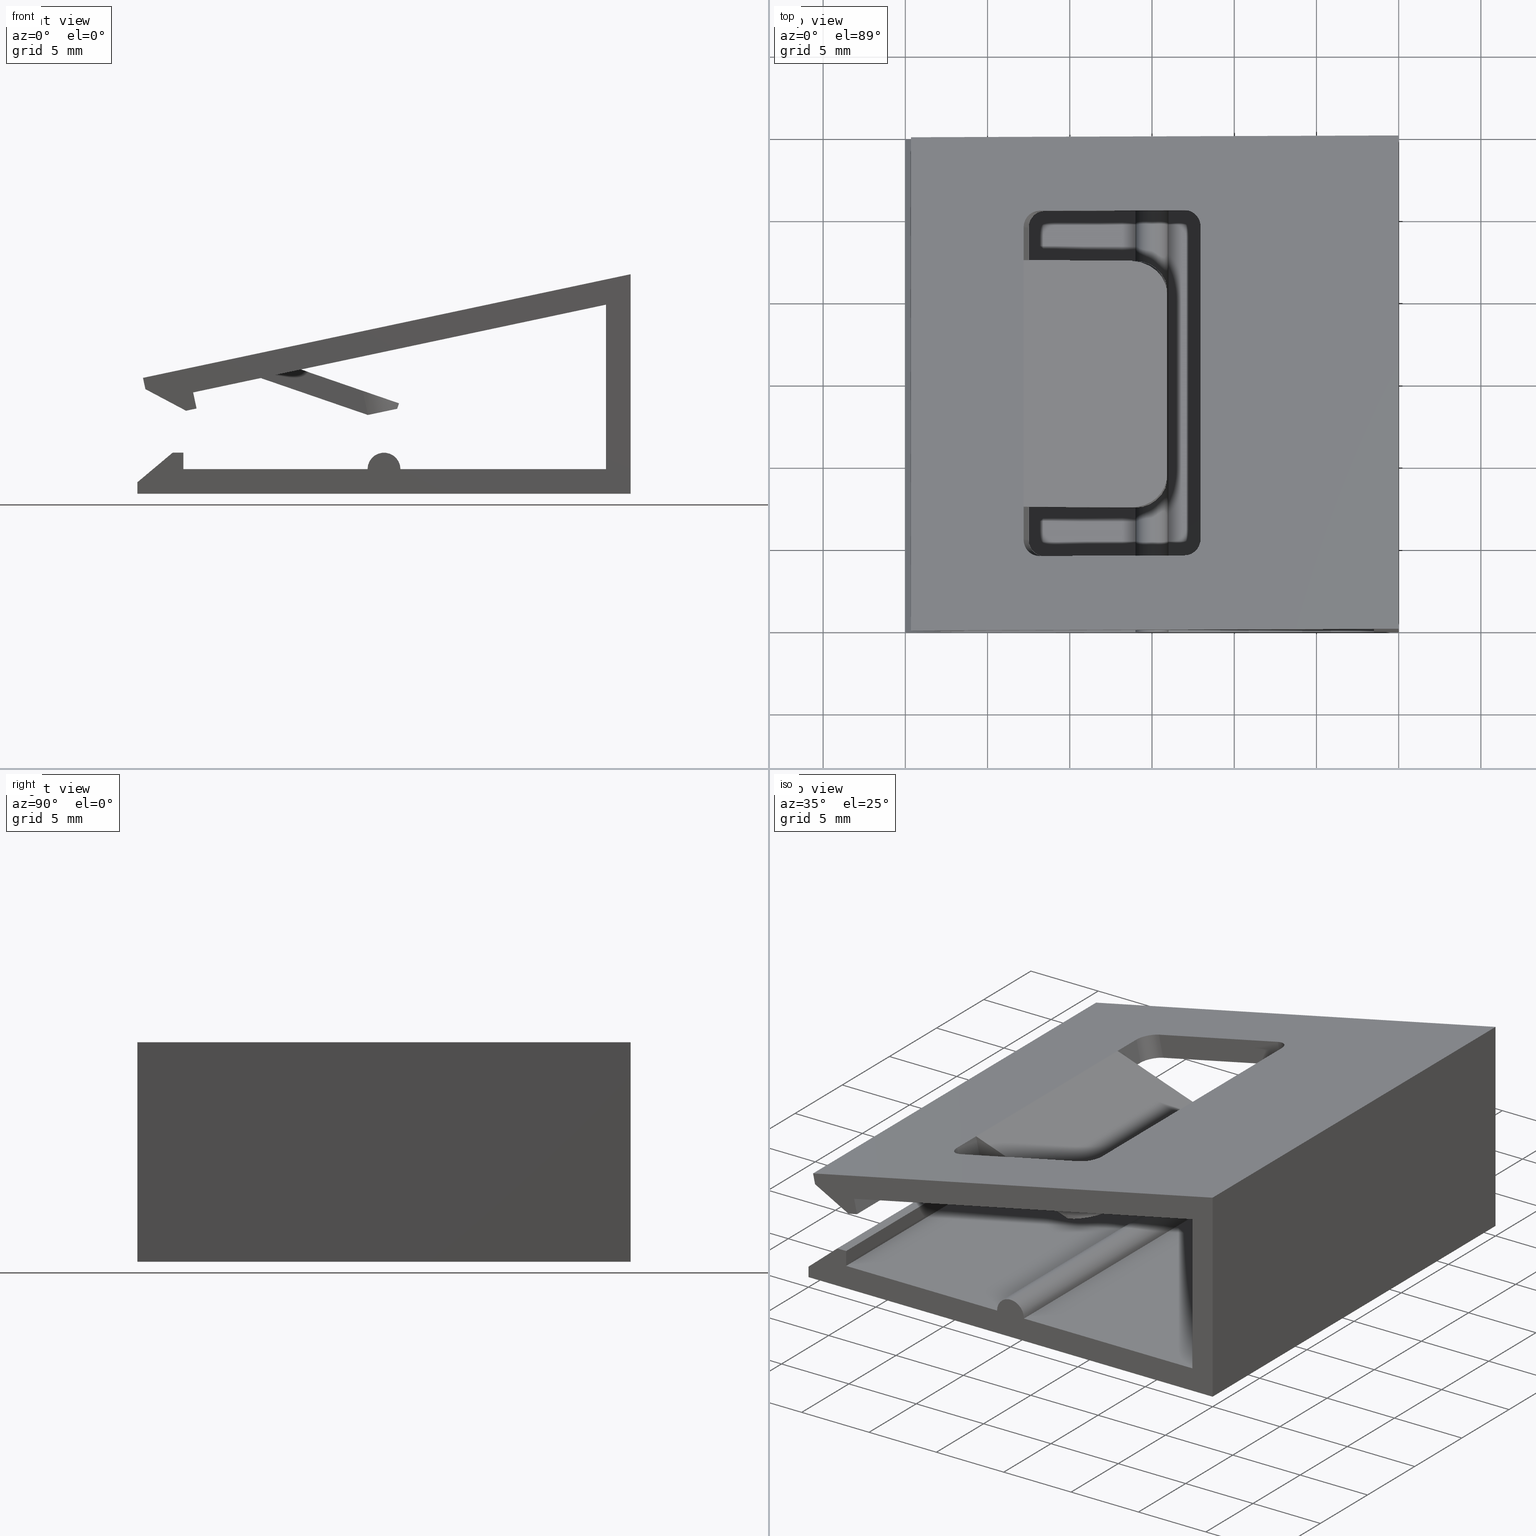
[diagram: canonical four-view strip — front | top / right | iso, engineering-drawing reading convention]
A machine part, canonical four-view strip (front | top / right | iso — engineering-drawing reading convention). The complete STEP part file that produces these views, byte-faithful:
ISO-10303-21;
HEADER;
FILE_DESCRIPTION( ( 'STEP AP203' ), '1' );
FILE_NAME( 'C:/Documents and Settings/JP/�f�X�N�g�b�v/�_�E�����[�h�pCAD�f�[�^/�|�ރ}�[�J�[/�|�ރ}�[�J�[�iCAD�f�[�^�p�j.step', '2022-07-20T04:21:19', ( ' ' ), ( ' ' ), 'XStep 1.0', ' ', ' ' );
FILE_SCHEMA( ( 'CONFIG_CONTROL_DESIGN' ) );
ENDSEC;
DATA;
#1 = DESIGN_CONTEXT( '', #27, 'design' );
#2 = APPLICATION_PROTOCOL_DEFINITION( 'INTERNATIONAL STANDARD', 'config_control_design', 1994, #27 );
#3 = PRODUCT_CATEGORY_RELATIONSHIP( 'NONE', 'NONE', #28, #29 );
#4 = DATE_AND_TIME( #30, #31 );
#5 = DATE_TIME_ROLE( 'creation_date' );
#6 = DATE_TIME_ROLE( 'classification_date' );
#7 = PERSON_AND_ORGANIZATION_ROLE( 'creator' );
#8 = PERSON_AND_ORGANIZATION_ROLE( 'design_supplier' );
#9 = PERSON_AND_ORGANIZATION_ROLE( 'classification_officer' );
#10 = PERSON_AND_ORGANIZATION_ROLE( 'design_owner' );
#11 = APPROVAL_PERSON_ORGANIZATION( #32, #33, #34 );
#12 = APPROVAL_DATE_TIME( #4, #33 );
#13 = CC_DESIGN_APPROVAL( #33, ( #35, #36, #37 ) );
#14 = CC_DESIGN_DATE_AND_TIME_ASSIGNMENT( #4, #5, ( #37 ) );
#15 = CC_DESIGN_DATE_AND_TIME_ASSIGNMENT( #4, #6, ( #35 ) );
#16 = CC_DESIGN_PERSON_AND_ORGANIZATION_ASSIGNMENT( #32, #10, ( #38 ) );
#17 = CC_DESIGN_PERSON_AND_ORGANIZATION_ASSIGNMENT( #32, #7, ( #37 ) );
#18 = CC_DESIGN_PERSON_AND_ORGANIZATION_ASSIGNMENT( #32, #7, ( #36 ) );
#19 = CC_DESIGN_PERSON_AND_ORGANIZATION_ASSIGNMENT( #32, #8, ( #36 ) );
#20 = CC_DESIGN_SECURITY_CLASSIFICATION( #35, ( #36 ) );
#21 = CC_DESIGN_PERSON_AND_ORGANIZATION_ASSIGNMENT( #32, #9, ( #35 ) );
#22 = SHAPE_DEFINITION_REPRESENTATION( #39, #40 );
#23 =  ( GEOMETRIC_REPRESENTATION_CONTEXT( 3 )GLOBAL_UNCERTAINTY_ASSIGNED_CONTEXT( ( #43 ) )GLOBAL_UNIT_ASSIGNED_CONTEXT( ( #45, #46, #47 ) )REPRESENTATION_CONTEXT( 'NONE', 'WORKSPACE' ) );
#27 = APPLICATION_CONTEXT( 'CONFIGURATION CONTROLLED 3D DESIGNS OF MECHANICAL PARTS AND ASSEMBLIES' );
#28 = PRODUCT_CATEGORY( 'part', 'NONE' );
#29 = PRODUCT_RELATED_PRODUCT_CATEGORY( 'detail', ' ', ( #38 ) );
#30 = CALENDAR_DATE( 2022, 20, 6 );
#31 = LOCAL_TIME( 13, 21, 19.0000000000000, #49 );
#32 = PERSON_AND_ORGANIZATION( #50, #51 );
#33 = APPROVAL( #52, 'SOLID MODEL' );
#34 = APPROVAL_ROLE( 'APPROVED' );
#35 = SECURITY_CLASSIFICATION( '', '', #53 );
#36 = PRODUCT_DEFINITION_FORMATION_WITH_SPECIFIED_SOURCE( ' ', 'NONE', #38, .NOT_KNOWN. );
#37 = PRODUCT_DEFINITION( 'NONE', 'NONE', #36, #1 );
#38 = PRODUCT( '1', '1', 'PART-1-DESC', ( #54 ) );
#39 = PRODUCT_DEFINITION_SHAPE( 'NONE', 'NONE', #37 );
#40 = ADVANCED_BREP_SHAPE_REPRESENTATION( '1', ( #55, #56 ), #23 );
#43 = UNCERTAINTY_MEASURE_WITH_UNIT( LENGTH_MEASURE( 0.00100000000000000 ), #45, '', '' );
#45 =  ( CONVERSION_BASED_UNIT( 'MILLIMETRE', #59 )LENGTH_UNIT(  )NAMED_UNIT( #62 ) );
#46 =  ( NAMED_UNIT( #64 )PLANE_ANGLE_UNIT(  )SI_UNIT( $, .RADIAN. ) );
#47 =  ( NAMED_UNIT( #64 )SOLID_ANGLE_UNIT(  )SI_UNIT( $, .STERADIAN. ) );
#49 = COORDINATED_UNIVERSAL_TIME_OFFSET( 9, 0, .AHEAD. );
#50 = PERSON( '', 'UNSPECIFIED', $, $, $, $ );
#51 = ORGANIZATION( 'UNSPECIFIED', 'UNSPECIFIED', 'UNSPECIFIED' );
#52 = APPROVAL_STATUS( 'approved' );
#53 = SECURITY_CLASSIFICATION_LEVEL( 'unclassified' );
#54 = MECHANICAL_CONTEXT( '', #27, 'mechanical' );
#55 = MANIFOLD_SOLID_BREP( '1', #70 );
#56 = AXIS2_PLACEMENT_3D( '', #71, #72, #73 );
#59 = LENGTH_MEASURE_WITH_UNIT( LENGTH_MEASURE( 1.00000000000000 ), #74 );
#62 = DIMENSIONAL_EXPONENTS( 1.00000000000000, 0.000000000000000, 0.000000000000000, 0.000000000000000, 0.000000000000000, 0.000000000000000, 0.000000000000000 );
#64 = DIMENSIONAL_EXPONENTS( 0.000000000000000, 0.000000000000000, 0.000000000000000, 0.000000000000000, 0.000000000000000, 0.000000000000000, 0.000000000000000 );
#70 = CLOSED_SHELL( '', ( #75, #76, #77, #78, #79, #80, #81, #82, #83, #84, #85, #86, #87, #88, #89, #90, #91, #92, #93, #94, #95, #96, #97, #98, #99, #100, #101, #102, #103, #104, #105, #106, #107, #108, #109 ) );
#71 = CARTESIAN_POINT( '', ( 0.000000000000000, 0.000000000000000, 0.000000000000000 ) );
#72 = DIRECTION( '', ( 0.000000000000000, 0.000000000000000, 1.00000000000000 ) );
#73 = DIRECTION( '', ( 1.00000000000000, 0.000000000000000, 0.000000000000000 ) );
#74 =  ( NAMED_UNIT( #62 )LENGTH_UNIT(  )SI_UNIT( .MILLI., .METRE. ) );
#75 = ADVANCED_FACE( '', ( #111 ), #112, .T. );
#76 = ADVANCED_FACE( '', ( #113 ), #114, .T. );
#77 = ADVANCED_FACE( '', ( #115 ), #116, .T. );
#78 = ADVANCED_FACE( '', ( #117 ), #118, .F. );
#79 = ADVANCED_FACE( '', ( #119 ), #120, .F. );
#80 = ADVANCED_FACE( '', ( #121, #122 ), #123, .T. );
#81 = ADVANCED_FACE( '', ( #124 ), #125, .F. );
#82 = ADVANCED_FACE( '', ( #126 ), #127, .F. );
#83 = ADVANCED_FACE( '', ( #128, #129 ), #130, .T. );
#84 = ADVANCED_FACE( '', ( #131 ), #132, .T. );
#85 = ADVANCED_FACE( '', ( #133 ), #134, .F. );
#86 = ADVANCED_FACE( '', ( #135 ), #136, .T. );
#87 = ADVANCED_FACE( '', ( #137 ), #138, .T. );
#88 = ADVANCED_FACE( '', ( #139 ), #140, .T. );
#89 = ADVANCED_FACE( '', ( #141 ), #142, .T. );
#90 = ADVANCED_FACE( '', ( #143 ), #144, .T. );
#91 = ADVANCED_FACE( '', ( #145 ), #146, .T. );
#92 = ADVANCED_FACE( '', ( #147 ), #148, .T. );
#93 = ADVANCED_FACE( '', ( #149 ), #150, .T. );
#94 = ADVANCED_FACE( '', ( #151 ), #152, .T. );
#95 = ADVANCED_FACE( '', ( #153 ), #154, .T. );
#96 = ADVANCED_FACE( '', ( #155 ), #156, .T. );
#97 = ADVANCED_FACE( '', ( #157 ), #158, .T. );
#98 = ADVANCED_FACE( '', ( #159 ), #160, .F. );
#99 = ADVANCED_FACE( '', ( #161 ), #162, .F. );
#100 = ADVANCED_FACE( '', ( #163 ), #164, .T. );
#101 = ADVANCED_FACE( '', ( #165 ), #166, .T. );
#102 = ADVANCED_FACE( '', ( #167 ), #168, .F. );
#103 = ADVANCED_FACE( '', ( #169 ), #170, .F. );
#104 = ADVANCED_FACE( '', ( #171 ), #172, .F. );
#105 = ADVANCED_FACE( '', ( #173 ), #174, .F. );
#106 = ADVANCED_FACE( '', ( #175 ), #176, .F. );
#107 = ADVANCED_FACE( '', ( #177 ), #178, .F. );
#108 = ADVANCED_FACE( '', ( #179 ), #180, .F. );
#109 = ADVANCED_FACE( '', ( #181 ), #182, .T. );
#111 = FACE_OUTER_BOUND( '', #183, .T. );
#112 = PLANE( '', #184 );
#113 = FACE_OUTER_BOUND( '', #185, .T. );
#114 = PLANE( '', #186 );
#115 = FACE_OUTER_BOUND( '', #187, .T. );
#116 = CYLINDRICAL_SURFACE( '', #188, 2.00000000000000 );
#117 = FACE_OUTER_BOUND( '', #189, .T. );
#118 = PLANE( '', #190 );
#119 = FACE_OUTER_BOUND( '', #191, .T. );
#120 = PLANE( '', #192 );
#121 = FACE_OUTER_BOUND( '', #193, .T. );
#122 = FACE_BOUND( '', #194, .T. );
#123 = PLANE( '', #195 );
#124 = FACE_OUTER_BOUND( '', #196, .T. );
#125 = CYLINDRICAL_SURFACE( '', #197, 1.00000000000000 );
#126 = FACE_OUTER_BOUND( '', #198, .T. );
#127 = PLANE( '', #199 );
#128 = FACE_OUTER_BOUND( '', #200, .T. );
#129 = FACE_BOUND( '', #201, .T. );
#130 = PLANE( '', #202 );
#131 = FACE_OUTER_BOUND( '', #203, .T. );
#132 = PLANE( '', #204 );
#133 = FACE_OUTER_BOUND( '', #205, .T. );
#134 = PLANE( '', #206 );
#135 = FACE_OUTER_BOUND( '', #207, .T. );
#136 = PLANE( '', #208 );
#137 = FACE_OUTER_BOUND( '', #209, .T. );
#138 = PLANE( '', #210 );
#139 = FACE_OUTER_BOUND( '', #211, .T. );
#140 = PLANE( '', #212 );
#141 = FACE_OUTER_BOUND( '', #213, .T. );
#142 = PLANE( '', #214 );
#143 = FACE_OUTER_BOUND( '', #215, .T. );
#144 = CYLINDRICAL_SURFACE( '', #216, 1.00000000000000 );
#145 = FACE_OUTER_BOUND( '', #217, .T. );
#146 = PLANE( '', #218 );
#147 = FACE_OUTER_BOUND( '', #219, .T. );
#148 = PLANE( '', #220 );
#149 = FACE_OUTER_BOUND( '', #221, .T. );
#150 = PLANE( '', #222 );
#151 = FACE_OUTER_BOUND( '', #223, .T. );
#152 = PLANE( '', #224 );
#153 = FACE_OUTER_BOUND( '', #225, .T. );
#154 = PLANE( '', #226 );
#155 = FACE_OUTER_BOUND( '', #227, .T. );
#156 = PLANE( '', #228 );
#157 = FACE_OUTER_BOUND( '', #229, .T. );
#158 = PLANE( '', #230 );
#159 = FACE_OUTER_BOUND( '', #231, .T. );
#160 = PLANE( '', #232 );
#161 = FACE_OUTER_BOUND( '', #233, .T. );
#162 = PLANE( '', #234 );
#163 = FACE_OUTER_BOUND( '', #235, .T. );
#164 = PLANE( '', #236 );
#165 = FACE_OUTER_BOUND( '', #237, .T. );
#166 = PLANE( '', #238 );
#167 = FACE_OUTER_BOUND( '', #239, .T. );
#168 = PLANE( '', #240 );
#169 = FACE_OUTER_BOUND( '', #241, .T. );
#170 = CYLINDRICAL_SURFACE( '', #242, 1.00000000000000 );
#171 = FACE_OUTER_BOUND( '', #243, .T. );
#172 = CYLINDRICAL_SURFACE( '', #244, 1.00000000000000 );
#173 = FACE_OUTER_BOUND( '', #245, .T. );
#174 = CYLINDRICAL_SURFACE( '', #246, 1.00000000000000 );
#175 = FACE_OUTER_BOUND( '', #247, .T. );
#176 = PLANE( '', #248 );
#177 = FACE_OUTER_BOUND( '', #249, .T. );
#178 = PLANE( '', #250 );
#179 = FACE_OUTER_BOUND( '', #251, .T. );
#180 = PLANE( '', #252 );
#181 = FACE_OUTER_BOUND( '', #253, .T. );
#182 = CYLINDRICAL_SURFACE( '', #254, 2.00000000000000 );
#183 = EDGE_LOOP( '', ( #255, #256, #257, #258 ) );
#184 = AXIS2_PLACEMENT_3D( '', #259, #260, #261 );
#185 = EDGE_LOOP( '', ( #262, #263, #264, #265 ) );
#186 = AXIS2_PLACEMENT_3D( '', #266, #267, #268 );
#187 = EDGE_LOOP( '', ( #269, #270, #271, #272 ) );
#188 = AXIS2_PLACEMENT_3D( '', #273, #274, #275 );
#189 = EDGE_LOOP( '', ( #276, #277, #278, #279 ) );
#190 = AXIS2_PLACEMENT_3D( '', #280, #281, #282 );
#191 = EDGE_LOOP( '', ( #283, #284, #285, #286 ) );
#192 = AXIS2_PLACEMENT_3D( '', #287, #288, #289 );
#193 = EDGE_LOOP( '', ( #290, #291, #292, #293 ) );
#194 = EDGE_LOOP( '', ( #294, #295, #296, #297, #298, #299, #300, #301, #302, #303 ) );
#195 = AXIS2_PLACEMENT_3D( '', #304, #305, #306 );
#196 = EDGE_LOOP( '', ( #307, #308, #309, #310 ) );
#197 = AXIS2_PLACEMENT_3D( '', #311, #312, #313 );
#198 = EDGE_LOOP( '', ( #314, #315, #316, #317 ) );
#199 = AXIS2_PLACEMENT_3D( '', #318, #319, #320 );
#200 = EDGE_LOOP( '', ( #321, #322, #323, #324 ) );
#201 = EDGE_LOOP( '', ( #325, #326, #327, #328, #329, #330, #331, #332, #333, #334 ) );
#202 = AXIS2_PLACEMENT_3D( '', #335, #336, #337 );
#203 = EDGE_LOOP( '', ( #338, #339, #340, #341 ) );
#204 = AXIS2_PLACEMENT_3D( '', #342, #343, #344 );
#205 = EDGE_LOOP( '', ( #345, #346, #347, #348, #349, #350, #351, #352, #353, #354, #355, #356, #357, #358, #359, #360 ) );
#206 = AXIS2_PLACEMENT_3D( '', #361, #362, #363 );
#207 = EDGE_LOOP( '', ( #364, #365, #366, #367 ) );
#208 = AXIS2_PLACEMENT_3D( '', #368, #369, #370 );
#209 = EDGE_LOOP( '', ( #371, #372, #373, #374 ) );
#210 = AXIS2_PLACEMENT_3D( '', #375, #376, #377 );
#211 = EDGE_LOOP( '', ( #378, #379, #380, #381 ) );
#212 = AXIS2_PLACEMENT_3D( '', #382, #383, #384 );
#213 = EDGE_LOOP( '', ( #385, #386, #387, #388 ) );
#214 = AXIS2_PLACEMENT_3D( '', #389, #390, #391 );
#215 = EDGE_LOOP( '', ( #392, #393, #394, #395 ) );
#216 = AXIS2_PLACEMENT_3D( '', #396, #397, #398 );
#217 = EDGE_LOOP( '', ( #399, #400, #401, #402 ) );
#218 = AXIS2_PLACEMENT_3D( '', #403, #404, #405 );
#219 = EDGE_LOOP( '', ( #406, #407, #408, #409 ) );
#220 = AXIS2_PLACEMENT_3D( '', #410, #411, #412 );
#221 = EDGE_LOOP( '', ( #413, #414, #415, #416 ) );
#222 = AXIS2_PLACEMENT_3D( '', #417, #418, #419 );
#223 = EDGE_LOOP( '', ( #420, #421, #422, #423 ) );
#224 = AXIS2_PLACEMENT_3D( '', #424, #425, #426 );
#225 = EDGE_LOOP( '', ( #427, #428, #429, #430 ) );
#226 = AXIS2_PLACEMENT_3D( '', #431, #432, #433 );
#227 = EDGE_LOOP( '', ( #434, #435, #436, #437 ) );
#228 = AXIS2_PLACEMENT_3D( '', #438, #439, #440 );
#229 = EDGE_LOOP( '', ( #441, #442, #443, #444 ) );
#230 = AXIS2_PLACEMENT_3D( '', #445, #446, #447 );
#231 = EDGE_LOOP( '', ( #448, #449, #450, #451 ) );
#232 = AXIS2_PLACEMENT_3D( '', #452, #453, #454 );
#233 = EDGE_LOOP( '', ( #455, #456, #457, #458 ) );
#234 = AXIS2_PLACEMENT_3D( '', #459, #460, #461 );
#235 = EDGE_LOOP( '', ( #462, #463, #464, #465, #466, #467, #468, #469, #470, #471, #472, #473, #474, #475, #476, #477 ) );
#236 = AXIS2_PLACEMENT_3D( '', #478, #479, #480 );
#237 = EDGE_LOOP( '', ( #481, #482, #483, #484 ) );
#238 = AXIS2_PLACEMENT_3D( '', #485, #486, #487 );
#239 = EDGE_LOOP( '', ( #488, #489, #490, #491 ) );
#240 = AXIS2_PLACEMENT_3D( '', #492, #493, #494 );
#241 = EDGE_LOOP( '', ( #495, #496, #497, #498 ) );
#242 = AXIS2_PLACEMENT_3D( '', #499, #500, #501 );
#243 = EDGE_LOOP( '', ( #502, #503, #504, #505 ) );
#244 = AXIS2_PLACEMENT_3D( '', #506, #507, #508 );
#245 = EDGE_LOOP( '', ( #509, #510, #511, #512 ) );
#246 = AXIS2_PLACEMENT_3D( '', #513, #514, #515 );
#247 = EDGE_LOOP( '', ( #516, #517, #518, #519, #520, #521 ) );
#248 = AXIS2_PLACEMENT_3D( '', #522, #523, #524 );
#249 = EDGE_LOOP( '', ( #525, #526, #527, #528 ) );
#250 = AXIS2_PLACEMENT_3D( '', #529, #530, #531 );
#251 = EDGE_LOOP( '', ( #532, #533, #534, #535 ) );
#252 = AXIS2_PLACEMENT_3D( '', #536, #537, #538 );
#253 = EDGE_LOOP( '', ( #539, #540, #541, #542 ) );
#254 = AXIS2_PLACEMENT_3D( '', #543, #544, #545 );
#255 = ORIENTED_EDGE( '', *, *, #546, .F. );
#256 = ORIENTED_EDGE( '', *, *, #547, .T. );
#257 = ORIENTED_EDGE( '', *, *, #548, .F. );
#258 = ORIENTED_EDGE( '', *, *, #549, .F. );
#259 = CARTESIAN_POINT( '', ( -6.75883193166962, -7.50000000000000, 3.56336592369874 ) );
#260 = DIRECTION( '', ( -6.12303176911189E-017, -1.00000000000000, -1.83690953073357E-016 ) );
#261 = DIRECTION( '', ( -0.325531877810218, 1.93617922947431E-016, -0.945531065872165 ) );
#262 = ORIENTED_EDGE( '', *, *, #550, .F. );
#263 = ORIENTED_EDGE( '', *, *, #551, .F. );
#264 = ORIENTED_EDGE( '', *, *, #552, .T. );
#265 = ORIENTED_EDGE( '', *, *, #553, .T. );
#266 = CARTESIAN_POINT( '', ( -15.0000000000000, 15.0000000000000, 7.34763812293426E-015 ) );
#267 = DIRECTION( '', ( -6.12303176911189E-017, 1.83690953073357E-016, -1.00000000000000 ) );
#268 = DIRECTION( '', ( -1.00000000000000, 6.12303176911189E-017, 6.12303176911189E-017 ) );
#269 = ORIENTED_EDGE( '', *, *, #547, .F. );
#270 = ORIENTED_EDGE( '', *, *, #554, .F. );
#271 = ORIENTED_EDGE( '', *, *, #555, .F. );
#272 = ORIENTED_EDGE( '', *, *, #556, .F. );
#273 = CARTESIAN_POINT( '', ( -0.781107877261863, -5.49999999999999, 3.86508929337289 ) );
#274 = DIRECTION( '', ( 0.207911690817759, 1.36593800842229E-016, -0.978147600733806 ) );
#275 = DIRECTION( '', ( -6.75409708638206E-017, -1.00000000000000, -1.54001664146588E-016 ) );
#276 = ORIENTED_EDGE( '', *, *, #557, .F. );
#277 = ORIENTED_EDGE( '', *, *, #558, .T. );
#278 = ORIENTED_EDGE( '', *, *, #559, .T. );
#279 = ORIENTED_EDGE( '', *, *, #554, .T. );
#280 = CARTESIAN_POINT( '', ( 0.801824465112155, 7.50000000000000, 5.17043305136714 ) );
#281 = DIRECTION( '', ( -0.207911690817759, -1.66946366144741E-016, 0.978147600733806 ) );
#282 = DIRECTION( '', ( 0.978147600733806, -9.80837849831438E-017, 0.207911690817759 ) );
#283 = ORIENTED_EDGE( '', *, *, #546, .T. );
#284 = ORIENTED_EDGE( '', *, *, #560, .F. );
#285 = ORIENTED_EDGE( '', *, *, #561, .F. );
#286 = ORIENTED_EDGE( '', *, *, #557, .T. );
#287 = CARTESIAN_POINT( '', ( -0.978147600733760, 7.50000000000000, 4.79208830918225 ) );
#288 = DIRECTION( '', ( 0.325721916484280, -1.93617536728823E-016, 0.945465617101864 ) );
#289 = DIRECTION( '', ( 0.945465617101864, 1.94100917470090E-018, -0.325721916484280 ) );
#290 = ORIENTED_EDGE( '', *, *, #562, .F. );
#291 = ORIENTED_EDGE( '', *, *, #563, .F. );
#292 = ORIENTED_EDGE( '', *, *, #564, .T. );
#293 = ORIENTED_EDGE( '', *, *, #565, .T. );
#294 = ORIENTED_EDGE( '', *, *, #566, .F. );
#295 = ORIENTED_EDGE( '', *, *, #567, .T. );
#296 = ORIENTED_EDGE( '', *, *, #568, .T. );
#297 = ORIENTED_EDGE( '', *, *, #569, .T. );
#298 = ORIENTED_EDGE( '', *, *, #570, .F. );
#299 = ORIENTED_EDGE( '', *, *, #560, .T. );
#300 = ORIENTED_EDGE( '', *, *, #571, .F. );
#301 = ORIENTED_EDGE( '', *, *, #572, .T. );
#302 = ORIENTED_EDGE( '', *, *, #573, .F. );
#303 = ORIENTED_EDGE( '', *, *, #574, .T. );
#304 = CARTESIAN_POINT( '', ( -11.6056147399596, 15.0000000000000, 6.16480200975693 ) );
#305 = DIRECTION( '', ( 0.207911690817759, 1.66946366144741E-016, -0.978147600733806 ) );
#306 = DIRECTION( '', ( -0.978147600733806, 9.80837849831438E-017, -0.207911690817759 ) );
#307 = ORIENTED_EDGE( '', *, *, #575, .F. );
#308 = ORIENTED_EDGE( '', *, *, #576, .F. );
#309 = ORIENTED_EDGE( '', *, *, #569, .F. );
#310 = ORIENTED_EDGE( '', *, *, #577, .F. );
#311 = CARTESIAN_POINT( '', ( -7.85980123911345, 9.50000000000000, 13.5527536218546 ) );
#312 = DIRECTION( '', ( -0.207911690817759, -1.66946366144741E-016, 0.978147600733806 ) );
#313 = DIRECTION( '', ( 0.978147600733806, -9.80837849831439E-017, 0.207911690817759 ) );
#314 = ORIENTED_EDGE( '', *, *, #578, .F. );
#315 = ORIENTED_EDGE( '', *, *, #570, .T. );
#316 = ORIENTED_EDGE( '', *, *, #576, .T. );
#317 = ORIENTED_EDGE( '', *, *, #579, .T. );
#318 = CARTESIAN_POINT( '', ( -8.83794883984726, 10.5000000000000, 13.3448419310368 ) );
#319 = DIRECTION( '', ( -0.978147600733806, 9.80837849831438E-017, -0.207911690817759 ) );
#320 = DIRECTION( '', ( -0.207911690817759, -1.66946366144741E-016, 0.978147600733806 ) );
#321 = ORIENTED_EDGE( '', *, *, #580, .F. );
#322 = ORIENTED_EDGE( '', *, *, #581, .F. );
#323 = ORIENTED_EDGE( '', *, *, #582, .T. );
#324 = ORIENTED_EDGE( '', *, *, #583, .T. );
#325 = ORIENTED_EDGE( '', *, *, #579, .F. );
#326 = ORIENTED_EDGE( '', *, *, #575, .T. );
#327 = ORIENTED_EDGE( '', *, *, #584, .T. );
#328 = ORIENTED_EDGE( '', *, *, #585, .T. );
#329 = ORIENTED_EDGE( '', *, *, #586, .F. );
#330 = ORIENTED_EDGE( '', *, *, #587, .T. );
#331 = ORIENTED_EDGE( '', *, *, #588, .F. );
#332 = ORIENTED_EDGE( '', *, *, #589, .T. );
#333 = ORIENTED_EDGE( '', *, *, #590, .F. );
#334 = ORIENTED_EDGE( '', *, *, #591, .F. );
#335 = CARTESIAN_POINT( '', ( 15.0000000000000, 15.0000000000000, 13.3535108922976 ) );
#336 = DIRECTION( '', ( -0.207911690817759, -1.66946366144741E-016, 0.978147600733806 ) );
#337 = DIRECTION( '', ( 0.978147600733806, -9.80837849831439E-017, 0.207911690817759 ) );
#338 = ORIENTED_EDGE( '', *, *, #592, .F. );
#339 = ORIENTED_EDGE( '', *, *, #593, .F. );
#340 = ORIENTED_EDGE( '', *, *, #594, .T. );
#341 = ORIENTED_EDGE( '', *, *, #551, .T. );
#342 = CARTESIAN_POINT( '', ( -15.0000000000000, 15.0000000000000, 0.700000000000012 ) );
#343 = DIRECTION( '', ( -1.00000000000000, 6.12303176911189E-017, 0.000000000000000 ) );
#344 = DIRECTION( '', ( -1.12474554136660E-032, -1.83690953073357E-016, 1.00000000000000 ) );
#345 = ORIENTED_EDGE( '', *, *, #552, .F. );
#346 = ORIENTED_EDGE( '', *, *, #594, .F. );
#347 = ORIENTED_EDGE( '', *, *, #595, .F. );
#348 = ORIENTED_EDGE( '', *, *, #596, .F. );
#349 = ORIENTED_EDGE( '', *, *, #597, .F. );
#350 = ORIENTED_EDGE( '', *, *, #598, .F. );
#351 = ORIENTED_EDGE( '', *, *, #599, .F. );
#352 = ORIENTED_EDGE( '', *, *, #600, .F. );
#353 = ORIENTED_EDGE( '', *, *, #601, .F. );
#354 = ORIENTED_EDGE( '', *, *, #564, .F. );
#355 = ORIENTED_EDGE( '', *, *, #602, .F. );
#356 = ORIENTED_EDGE( '', *, *, #603, .F. );
#357 = ORIENTED_EDGE( '', *, *, #604, .F. );
#358 = ORIENTED_EDGE( '', *, *, #605, .F. );
#359 = ORIENTED_EDGE( '', *, *, #582, .F. );
#360 = ORIENTED_EDGE( '', *, *, #606, .F. );
#361 = CARTESIAN_POINT( '', ( 1.56125112837913E-014, 15.0000000000000, 1.50000000000001 ) );
#362 = DIRECTION( '', ( -6.12303176911189E-017, -1.00000000000000, -1.83690953073357E-016 ) );
#363 = DIRECTION( '', ( 1.00000000000000, -6.12303176911189E-017, 0.000000000000000 ) );
#364 = ORIENTED_EDGE( '', *, *, #607, .F. );
#365 = ORIENTED_EDGE( '', *, *, #608, .F. );
#366 = ORIENTED_EDGE( '', *, *, #595, .T. );
#367 = ORIENTED_EDGE( '', *, *, #593, .T. );
#368 = CARTESIAN_POINT( '', ( -12.8548435333304, 15.0000000000000, 2.50000000000001 ) );
#369 = DIRECTION( '', ( -0.642787609686539, -1.01357344304052E-016, 0.766044443118978 ) );
#370 = DIRECTION( '', ( 0.766044443118978, -1.64979413264756E-016, 0.642787609686539 ) );
#371 = ORIENTED_EDGE( '', *, *, #609, .F. );
#372 = ORIENTED_EDGE( '', *, *, #610, .F. );
#373 = ORIENTED_EDGE( '', *, *, #596, .T. );
#374 = ORIENTED_EDGE( '', *, *, #608, .T. );
#375 = CARTESIAN_POINT( '', ( -12.2000000000000, 15.0000000000000, 2.50000000000001 ) );
#376 = DIRECTION( '', ( -1.12474554136660E-032, -1.83690953073357E-016, 1.00000000000000 ) );
#377 = DIRECTION( '', ( 1.00000000000000, -6.12303176911189E-017, 0.000000000000000 ) );
#378 = ORIENTED_EDGE( '', *, *, #611, .F. );
#379 = ORIENTED_EDGE( '', *, *, #612, .F. );
#380 = ORIENTED_EDGE( '', *, *, #597, .T. );
#381 = ORIENTED_EDGE( '', *, *, #610, .T. );
#382 = CARTESIAN_POINT( '', ( -12.2000000000000, 15.0000000000000, 1.50000000000001 ) );
#383 = DIRECTION( '', ( 1.00000000000000, -6.12303176911189E-017, 0.000000000000000 ) );
#384 = DIRECTION( '', ( 1.12474554136660E-032, 1.83690953073357E-016, -1.00000000000000 ) );
#385 = ORIENTED_EDGE( '', *, *, #613, .F. );
#386 = ORIENTED_EDGE( '', *, *, #614, .F. );
#387 = ORIENTED_EDGE( '', *, *, #598, .T. );
#388 = ORIENTED_EDGE( '', *, *, #612, .T. );
#389 = CARTESIAN_POINT( '', ( -0.999999999999984, 15.0000000000000, 1.50000000000001 ) );
#390 = DIRECTION( '', ( 6.37765983815003E-017, -1.83690953073357E-016, 1.00000000000000 ) );
#391 = DIRECTION( '', ( 1.00000000000000, -6.12303176911189E-017, -6.37765983815003E-017 ) );
#392 = ORIENTED_EDGE( '', *, *, #615, .F. );
#393 = ORIENTED_EDGE( '', *, *, #616, .F. );
#394 = ORIENTED_EDGE( '', *, *, #599, .T. );
#395 = ORIENTED_EDGE( '', *, *, #614, .T. );
#396 = CARTESIAN_POINT( '', ( 1.56125112837913E-014, 15.0000000000000, 1.50000000000001 ) );
#397 = DIRECTION( '', ( 6.12303176911189E-017, 1.00000000000000, 1.83690953073357E-016 ) );
#398 = DIRECTION( '', ( 1.00000000000000, -6.12303176911189E-017, 0.000000000000000 ) );
#399 = ORIENTED_EDGE( '', *, *, #617, .F. );
#400 = ORIENTED_EDGE( '', *, *, #618, .F. );
#401 = ORIENTED_EDGE( '', *, *, #600, .T. );
#402 = ORIENTED_EDGE( '', *, *, #616, .T. );
#403 = CARTESIAN_POINT( '', ( 13.5000000000000, 15.0000000000000, 1.50000000000001 ) );
#404 = DIRECTION( '', ( 6.37765983815003E-017, -1.83690953073357E-016, 1.00000000000000 ) );
#405 = DIRECTION( '', ( 1.00000000000000, -6.12303176911189E-017, -6.37765983815003E-017 ) );
#406 = ORIENTED_EDGE( '', *, *, #619, .F. );
#407 = ORIENTED_EDGE( '', *, *, #565, .F. );
#408 = ORIENTED_EDGE( '', *, *, #601, .T. );
#409 = ORIENTED_EDGE( '', *, *, #618, .T. );
#410 = CARTESIAN_POINT( '', ( 13.5000000000000, 15.0000000000000, 11.5011651574950 ) );
#411 = DIRECTION( '', ( -1.00000000000000, 6.12303176911189E-017, 0.000000000000000 ) );
#412 = DIRECTION( '', ( -1.12474554136660E-032, -1.83690953073357E-016, 1.00000000000000 ) );
#413 = ORIENTED_EDGE( '', *, *, #620, .F. );
#414 = ORIENTED_EDGE( '', *, *, #621, .F. );
#415 = ORIENTED_EDGE( '', *, *, #602, .T. );
#416 = ORIENTED_EDGE( '', *, *, #563, .T. );
#417 = CARTESIAN_POINT( '', ( -11.3977030491419, 15.0000000000000, 5.18665440902314 ) );
#418 = DIRECTION( '', ( 0.978147600733807, -9.80837849831431E-017, 0.207911690817755 ) );
#419 = DIRECTION( '', ( 0.207911690817755, 1.66946366144741E-016, -0.978147600733807 ) );
#420 = ORIENTED_EDGE( '', *, *, #622, .F. );
#421 = ORIENTED_EDGE( '', *, *, #623, .F. );
#422 = ORIENTED_EDGE( '', *, *, #603, .T. );
#423 = ORIENTED_EDGE( '', *, *, #621, .T. );
#424 = CARTESIAN_POINT( '', ( -12.0382366801250, 15.0000000000000, 5.05050478278734 ) );
#425 = DIRECTION( '', ( 0.207911690817760, 1.66946366144741E-016, -0.978147600733805 ) );
#426 = DIRECTION( '', ( -0.978147600733805, 9.80837849831440E-017, -0.207911690817760 ) );
#427 = ORIENTED_EDGE( '', *, *, #624, .F. );
#428 = ORIENTED_EDGE( '', *, *, #625, .F. );
#429 = ORIENTED_EDGE( '', *, *, #604, .T. );
#430 = ORIENTED_EDGE( '', *, *, #623, .T. );
#431 = CARTESIAN_POINT( '', ( -14.5107573746685, 15.0000000000000, 6.36516735605428 ) );
#432 = DIRECTION( '', ( -0.469471562785890, 1.90935377782409E-016, -0.882947592858927 ) );
#433 = DIRECTION( '', ( -0.882947592858927, -3.21745171936175E-017, 0.469471562785890 ) );
#434 = ORIENTED_EDGE( '', *, *, #626, .F. );
#435 = ORIENTED_EDGE( '', *, *, #583, .F. );
#436 = ORIENTED_EDGE( '', *, *, #605, .T. );
#437 = ORIENTED_EDGE( '', *, *, #625, .T. );
#438 = CARTESIAN_POINT( '', ( -14.6562955582409, 15.0000000000000, 7.04987067656792 ) );
#439 = DIRECTION( '', ( -0.978147600733807, 9.80837849831427E-017, -0.207911690817752 ) );
#440 = DIRECTION( '', ( -0.207911690817752, -1.66946366144741E-016, 0.978147600733807 ) );
#441 = ORIENTED_EDGE( '', *, *, #627, .F. );
#442 = ORIENTED_EDGE( '', *, *, #553, .F. );
#443 = ORIENTED_EDGE( '', *, *, #606, .T. );
#444 = ORIENTED_EDGE( '', *, *, #581, .T. );
#445 = CARTESIAN_POINT( '', ( 15.0000000000000, 15.0000000000000, 5.51072859220070E-015 ) );
#446 = DIRECTION( '', ( 1.00000000000000, -6.12303176911189E-017, 0.000000000000000 ) );
#447 = DIRECTION( '', ( 1.12474554136660E-032, 1.83690953073357E-016, -1.00000000000000 ) );
#448 = ORIENTED_EDGE( '', *, *, #566, .T. );
#449 = ORIENTED_EDGE( '', *, *, #628, .T. );
#450 = ORIENTED_EDGE( '', *, *, #586, .T. );
#451 = ORIENTED_EDGE( '', *, *, #629, .T. );
#452 = CARTESIAN_POINT( '', ( 4.00079167640225, 10.5000000000000, 5.85039452269411 ) );
#453 = DIRECTION( '', ( 0.978147600733806, -9.80837849831438E-017, 0.207911690817759 ) );
#454 = DIRECTION( '', ( 0.207911690817759, 1.66946366144741E-016, -0.978147600733806 ) );
#455 = ORIENTED_EDGE( '', *, *, #571, .T. );
#456 = ORIENTED_EDGE( '', *, *, #549, .T. );
#457 = ORIENTED_EDGE( '', *, *, #590, .T. );
#458 = ORIENTED_EDGE( '', *, *, #630, .T. );
#459 = CARTESIAN_POINT( '', ( -8.83794883984726, 10.5000000000000, 13.3448419310368 ) );
#460 = DIRECTION( '', ( -0.978147600733806, 9.80837849831438E-017, -0.207911690817759 ) );
#461 = DIRECTION( '', ( -0.207911690817759, -1.66946366144741E-016, 0.978147600733806 ) );
#462 = ORIENTED_EDGE( '', *, *, #550, .T. );
#463 = ORIENTED_EDGE( '', *, *, #627, .T. );
#464 = ORIENTED_EDGE( '', *, *, #580, .T. );
#465 = ORIENTED_EDGE( '', *, *, #626, .T. );
#466 = ORIENTED_EDGE( '', *, *, #624, .T. );
#467 = ORIENTED_EDGE( '', *, *, #622, .T. );
#468 = ORIENTED_EDGE( '', *, *, #620, .T. );
#469 = ORIENTED_EDGE( '', *, *, #562, .T. );
#470 = ORIENTED_EDGE( '', *, *, #619, .T. );
#471 = ORIENTED_EDGE( '', *, *, #617, .T. );
#472 = ORIENTED_EDGE( '', *, *, #615, .T. );
#473 = ORIENTED_EDGE( '', *, *, #613, .T. );
#474 = ORIENTED_EDGE( '', *, *, #611, .T. );
#475 = ORIENTED_EDGE( '', *, *, #609, .T. );
#476 = ORIENTED_EDGE( '', *, *, #607, .T. );
#477 = ORIENTED_EDGE( '', *, *, #592, .T. );
#478 = CARTESIAN_POINT( '', ( 1.38777878078145E-014, -15.0000000000000, 1.50000000000000 ) );
#479 = DIRECTION( '', ( -6.12303176911189E-017, -1.00000000000000, -1.83690953073357E-016 ) );
#480 = DIRECTION( '', ( 1.00000000000000, -6.12303176911189E-017, 0.000000000000000 ) );
#481 = ORIENTED_EDGE( '', *, *, #568, .F. );
#482 = ORIENTED_EDGE( '', *, *, #631, .T. );
#483 = ORIENTED_EDGE( '', *, *, #584, .F. );
#484 = ORIENTED_EDGE( '', *, *, #577, .T. );
#485 = CARTESIAN_POINT( '', ( 1.92167476822466, 10.5000000000000, 15.6318705300322 ) );
#486 = DIRECTION( '', ( -6.12303176911189E-017, -1.00000000000000, -1.83690953073357E-016 ) );
#487 = DIRECTION( '', ( -0.207911690817759, -1.66946366144741E-016, 0.978147600733806 ) );
#488 = ORIENTED_EDGE( '', *, *, #573, .T. );
#489 = ORIENTED_EDGE( '', *, *, #632, .T. );
#490 = ORIENTED_EDGE( '', *, *, #588, .T. );
#491 = ORIENTED_EDGE( '', *, *, #633, .T. );
#492 = CARTESIAN_POINT( '', ( 1.92167476822466, -10.5000000000000, 15.6318705300322 ) );
#493 = DIRECTION( '', ( -6.12303176911189E-017, -1.00000000000000, -1.83690953073357E-016 ) );
#494 = DIRECTION( '', ( -0.207911690817759, -1.66946366144741E-016, 0.978147600733806 ) );
#495 = ORIENTED_EDGE( '', *, *, #589, .F. );
#496 = ORIENTED_EDGE( '', *, *, #632, .F. );
#497 = ORIENTED_EDGE( '', *, *, #572, .F. );
#498 = ORIENTED_EDGE( '', *, *, #630, .F. );
#499 = CARTESIAN_POINT( '', ( -7.85980123911345, -9.50000000000000, 13.5527536218546 ) );
#500 = DIRECTION( '', ( 0.207911690817759, 1.66946366144741E-016, -0.978147600733806 ) );
#501 = DIRECTION( '', ( -0.978147600733806, 9.80837849831439E-017, -0.207911690817759 ) );
#502 = ORIENTED_EDGE( '', *, *, #574, .F. );
#503 = ORIENTED_EDGE( '', *, *, #633, .F. );
#504 = ORIENTED_EDGE( '', *, *, #587, .F. );
#505 = ORIENTED_EDGE( '', *, *, #628, .F. );
#506 = CARTESIAN_POINT( '', ( 3.02264407566845, -9.50000000000000, 5.64248283187635 ) );
#507 = DIRECTION( '', ( -0.207911690817759, -1.66946366144741E-016, 0.978147600733806 ) );
#508 = DIRECTION( '', ( 0.978147600733806, -9.80837849831439E-017, 0.207911690817759 ) );
#509 = ORIENTED_EDGE( '', *, *, #567, .F. );
#510 = ORIENTED_EDGE( '', *, *, #629, .F. );
#511 = ORIENTED_EDGE( '', *, *, #585, .F. );
#512 = ORIENTED_EDGE( '', *, *, #631, .F. );
#513 = CARTESIAN_POINT( '', ( 0.943527167490852, 9.50000000000000, 15.4239588392144 ) );
#514 = DIRECTION( '', ( 0.207911690817759, 1.66946366144741E-016, -0.978147600733806 ) );
#515 = DIRECTION( '', ( -0.978147600733806, 9.80837849831439E-017, -0.207911690817759 ) );
#516 = ORIENTED_EDGE( '', *, *, #634, .F. );
#517 = ORIENTED_EDGE( '', *, *, #635, .T. );
#518 = ORIENTED_EDGE( '', *, *, #636, .F. );
#519 = ORIENTED_EDGE( '', *, *, #591, .T. );
#520 = ORIENTED_EDGE( '', *, *, #548, .T. );
#521 = ORIENTED_EDGE( '', *, *, #556, .T. );
#522 = CARTESIAN_POINT( '', ( -7.80926235310428, 7.50000000000000, 8.50525251229226 ) );
#523 = DIRECTION( '', ( -0.325531877810218, 1.93617922947431E-016, -0.945531065872166 ) );
#524 = DIRECTION( '', ( -0.945531065872165, -1.90209334054346E-018, 0.325531877810218 ) );
#525 = ORIENTED_EDGE( '', *, *, #559, .F. );
#526 = ORIENTED_EDGE( '', *, *, #637, .T. );
#527 = ORIENTED_EDGE( '', *, *, #634, .T. );
#528 = ORIENTED_EDGE( '', *, *, #555, .T. );
#529 = CARTESIAN_POINT( '', ( 0.915774093488506, 7.50000000000000, 5.50135597103793 ) );
#530 = DIRECTION( '', ( -0.945515295529490, -1.91147246952872E-018, 0.325577680315744 ) );
#531 = DIRECTION( '', ( 0.325577680315744, -1.93617830580119E-016, 0.945515295529490 ) );
#532 = ORIENTED_EDGE( '', *, *, #636, .T. );
#533 = ORIENTED_EDGE( '', *, *, #638, .F. );
#534 = ORIENTED_EDGE( '', *, *, #561, .T. );
#535 = ORIENTED_EDGE( '', *, *, #578, .T. );
#536 = CARTESIAN_POINT( '', ( -6.75883193166962, 7.50000000000000, 3.56336592369874 ) );
#537 = DIRECTION( '', ( -6.12303176911189E-017, -1.00000000000000, -1.83690953073357E-016 ) );
#538 = DIRECTION( '', ( -0.325531877810218, 1.93617922947431E-016, -0.945531065872165 ) );
#539 = ORIENTED_EDGE( '', *, *, #637, .F. );
#540 = ORIENTED_EDGE( '', *, *, #558, .F. );
#541 = ORIENTED_EDGE( '', *, *, #638, .T. );
#542 = ORIENTED_EDGE( '', *, *, #635, .F. );
#543 = CARTESIAN_POINT( '', ( -0.781107877261863, 5.49999999999999, 3.86508929337290 ) );
#544 = DIRECTION( '', ( 0.207911690817759, 1.36593800842229E-016, -0.978147600733806 ) );
#545 = DIRECTION( '', ( -6.75409708638206E-017, -1.00000000000000, -1.54001664146588E-016 ) );
#546 = EDGE_CURVE( '', #639, #640, #641, .T. );
#547 = EDGE_CURVE( '', #639, #642, #643, .T. );
#548 = EDGE_CURVE( '', #644, #642, #645, .T. );
#549 = EDGE_CURVE( '', #640, #644, #646, .T. );
#550 = EDGE_CURVE( '', #647, #648, #649, .T. );
#551 = EDGE_CURVE( '', #650, #647, #651, .T. );
#552 = EDGE_CURVE( '', #650, #652, #653, .T. );
#553 = EDGE_CURVE( '', #652, #648, #654, .T. );
#554 = EDGE_CURVE( '', #655, #639, #656, .F. );
#555 = EDGE_CURVE( '', #657, #655, #658, .F. );
#556 = EDGE_CURVE( '', #642, #657, #659, .F. );
#557 = EDGE_CURVE( '', #660, #639, #661, .T. );
#558 = EDGE_CURVE( '', #660, #662, #663, .F. );
#559 = EDGE_CURVE( '', #662, #655, #664, .T. );
#560 = EDGE_CURVE( '', #665, #640, #666, .T. );
#561 = EDGE_CURVE( '', #660, #665, #667, .T. );
#562 = EDGE_CURVE( '', #668, #669, #670, .T. );
#563 = EDGE_CURVE( '', #671, #668, #672, .T. );
#564 = EDGE_CURVE( '', #671, #673, #674, .T. );
#565 = EDGE_CURVE( '', #673, #669, #675, .T. );
#566 = EDGE_CURVE( '', #676, #677, #678, .T. );
#567 = EDGE_CURVE( '', #676, #679, #680, .F. );
#568 = EDGE_CURVE( '', #679, #681, #682, .T. );
#569 = EDGE_CURVE( '', #681, #683, #684, .F. );
#570 = EDGE_CURVE( '', #665, #683, #685, .T. );
#571 = EDGE_CURVE( '', #686, #640, #687, .T. );
#572 = EDGE_CURVE( '', #686, #688, #689, .F. );
#573 = EDGE_CURVE( '', #690, #688, #691, .T. );
#574 = EDGE_CURVE( '', #690, #677, #692, .F. );
#575 = EDGE_CURVE( '', #693, #694, #695, .F. );
#576 = EDGE_CURVE( '', #683, #693, #696, .F. );
#577 = EDGE_CURVE( '', #694, #681, #697, .T. );
#578 = EDGE_CURVE( '', #665, #698, #699, .T. );
#579 = EDGE_CURVE( '', #693, #698, #700, .T. );
#580 = EDGE_CURVE( '', #701, #702, #703, .T. );
#581 = EDGE_CURVE( '', #704, #701, #705, .T. );
#582 = EDGE_CURVE( '', #704, #706, #707, .T. );
#583 = EDGE_CURVE( '', #706, #702, #708, .T. );
#584 = EDGE_CURVE( '', #694, #709, #710, .T. );
#585 = EDGE_CURVE( '', #709, #711, #712, .F. );
#586 = EDGE_CURVE( '', #713, #711, #714, .T. );
#587 = EDGE_CURVE( '', #713, #715, #716, .F. );
#588 = EDGE_CURVE( '', #717, #715, #718, .T. );
#589 = EDGE_CURVE( '', #717, #719, #720, .F. );
#590 = EDGE_CURVE( '', #644, #719, #721, .T. );
#591 = EDGE_CURVE( '', #698, #644, #722, .T. );
#592 = EDGE_CURVE( '', #723, #647, #724, .T. );
#593 = EDGE_CURVE( '', #725, #723, #726, .T. );
#594 = EDGE_CURVE( '', #725, #650, #727, .T. );
#595 = EDGE_CURVE( '', #728, #725, #729, .T. );
#596 = EDGE_CURVE( '', #730, #728, #731, .T. );
#597 = EDGE_CURVE( '', #732, #730, #733, .T. );
#598 = EDGE_CURVE( '', #734, #732, #735, .T. );
#599 = EDGE_CURVE( '', #736, #734, #737, .T. );
#600 = EDGE_CURVE( '', #738, #736, #739, .T. );
#601 = EDGE_CURVE( '', #673, #738, #740, .T. );
#602 = EDGE_CURVE( '', #741, #671, #742, .T. );
#603 = EDGE_CURVE( '', #743, #741, #744, .T. );
#604 = EDGE_CURVE( '', #745, #743, #746, .T. );
#605 = EDGE_CURVE( '', #706, #745, #747, .T. );
#606 = EDGE_CURVE( '', #652, #704, #748, .T. );
#607 = EDGE_CURVE( '', #749, #723, #750, .T. );
#608 = EDGE_CURVE( '', #728, #749, #751, .T. );
#609 = EDGE_CURVE( '', #752, #749, #753, .T. );
#610 = EDGE_CURVE( '', #730, #752, #754, .T. );
#611 = EDGE_CURVE( '', #755, #752, #756, .T. );
#612 = EDGE_CURVE( '', #732, #755, #757, .T. );
#613 = EDGE_CURVE( '', #758, #755, #759, .T. );
#614 = EDGE_CURVE( '', #734, #758, #760, .T. );
#615 = EDGE_CURVE( '', #761, #758, #762, .T. );
#616 = EDGE_CURVE( '', #736, #761, #763, .T. );
#617 = EDGE_CURVE( '', #764, #761, #765, .T. );
#618 = EDGE_CURVE( '', #738, #764, #766, .T. );
#619 = EDGE_CURVE( '', #669, #764, #767, .T. );
#620 = EDGE_CURVE( '', #768, #668, #769, .T. );
#621 = EDGE_CURVE( '', #741, #768, #770, .T. );
#622 = EDGE_CURVE( '', #771, #768, #772, .T. );
#623 = EDGE_CURVE( '', #743, #771, #773, .T. );
#624 = EDGE_CURVE( '', #774, #771, #775, .T. );
#625 = EDGE_CURVE( '', #745, #774, #776, .T. );
#626 = EDGE_CURVE( '', #702, #774, #777, .T. );
#627 = EDGE_CURVE( '', #648, #701, #778, .T. );
#628 = EDGE_CURVE( '', #677, #713, #779, .T. );
#629 = EDGE_CURVE( '', #711, #676, #780, .F. );
#630 = EDGE_CURVE( '', #719, #686, #781, .T. );
#631 = EDGE_CURVE( '', #679, #709, #782, .T. );
#632 = EDGE_CURVE( '', #688, #717, #783, .F. );
#633 = EDGE_CURVE( '', #715, #690, #784, .F. );
#634 = EDGE_CURVE( '', #785, #657, #786, .T. );
#635 = EDGE_CURVE( '', #785, #787, #788, .F. );
#636 = EDGE_CURVE( '', #698, #787, #789, .T. );
#637 = EDGE_CURVE( '', #662, #785, #790, .F. );
#638 = EDGE_CURVE( '', #660, #787, #791, .T. );
#639 = VERTEX_POINT( '', #792 );
#640 = VERTEX_POINT( '', #793 );
#641 = LINE( '', #794, #795 );
#642 = VERTEX_POINT( '', #796 );
#643 = LINE( '', #797, #798 );
#644 = VERTEX_POINT( '', #799 );
#645 = LINE( '', #800, #801 );
#646 = LINE( '', #802, #803 );
#647 = VERTEX_POINT( '', #804 );
#648 = VERTEX_POINT( '', #805 );
#649 = LINE( '', #806, #807 );
#650 = VERTEX_POINT( '', #808 );
#651 = LINE( '', #809, #810 );
#652 = VERTEX_POINT( '', #811 );
#653 = LINE( '', #812, #813 );
#654 = LINE( '', #814, #815 );
#655 = VERTEX_POINT( '', #816 );
#656 = CIRCLE( '', #817, 2.00000000000000 );
#657 = VERTEX_POINT( '', #818 );
#658 = ELLIPSE( '', #819, 3.88314294350361, 2.00000000000000 );
#659 = ELLIPSE( '', #820, 2.33321300852714, 2.00000000000000 );
#660 = VERTEX_POINT( '', #821 );
#661 = LINE( '', #822, #823 );
#662 = VERTEX_POINT( '', #824 );
#663 = CIRCLE( '', #825, 2.00000000000000 );
#664 = LINE( '', #826, #827 );
#665 = VERTEX_POINT( '', #828 );
#666 = LINE( '', #829, #830 );
#667 = LINE( '', #831, #832 );
#668 = VERTEX_POINT( '', #833 );
#669 = VERTEX_POINT( '', #834 );
#670 = LINE( '', #835, #836 );
#671 = VERTEX_POINT( '', #837 );
#672 = LINE( '', #838, #839 );
#673 = VERTEX_POINT( '', #840 );
#674 = LINE( '', #841, #842 );
#675 = LINE( '', #843, #844 );
#676 = VERTEX_POINT( '', #845 );
#677 = VERTEX_POINT( '', #846 );
#678 = LINE( '', #847, #848 );
#679 = VERTEX_POINT( '', #849 );
#680 = CIRCLE( '', #850, 1.00000000000000 );
#681 = VERTEX_POINT( '', #851 );
#682 = LINE( '', #852, #853 );
#683 = VERTEX_POINT( '', #854 );
#684 = CIRCLE( '', #855, 1.00000000000000 );
#685 = LINE( '', #856, #857 );
#686 = VERTEX_POINT( '', #858 );
#687 = LINE( '', #859, #860 );
#688 = VERTEX_POINT( '', #861 );
#689 = CIRCLE( '', #862, 1.00000000000000 );
#690 = VERTEX_POINT( '', #863 );
#691 = LINE( '', #864, #865 );
#692 = CIRCLE( '', #866, 1.00000000000000 );
#693 = VERTEX_POINT( '', #867 );
#694 = VERTEX_POINT( '', #868 );
#695 = CIRCLE( '', #869, 1.00000000000000 );
#696 = LINE( '', #870, #871 );
#697 = LINE( '', #872, #873 );
#698 = VERTEX_POINT( '', #874 );
#699 = LINE( '', #875, #876 );
#700 = LINE( '', #877, #878 );
#701 = VERTEX_POINT( '', #879 );
#702 = VERTEX_POINT( '', #880 );
#703 = LINE( '', #881, #882 );
#704 = VERTEX_POINT( '', #883 );
#705 = LINE( '', #884, #885 );
#706 = VERTEX_POINT( '', #886 );
#707 = LINE( '', #887, #888 );
#708 = LINE( '', #889, #890 );
#709 = VERTEX_POINT( '', #891 );
#710 = LINE( '', #892, #893 );
#711 = VERTEX_POINT( '', #894 );
#712 = CIRCLE( '', #895, 1.00000000000000 );
#713 = VERTEX_POINT( '', #896 );
#714 = LINE( '', #897, #898 );
#715 = VERTEX_POINT( '', #899 );
#716 = CIRCLE( '', #900, 1.00000000000000 );
#717 = VERTEX_POINT( '', #901 );
#718 = LINE( '', #902, #903 );
#719 = VERTEX_POINT( '', #904 );
#720 = CIRCLE( '', #905, 1.00000000000000 );
#721 = LINE( '', #906, #907 );
#722 = LINE( '', #908, #909 );
#723 = VERTEX_POINT( '', #910 );
#724 = LINE( '', #911, #912 );
#725 = VERTEX_POINT( '', #913 );
#726 = LINE( '', #914, #915 );
#727 = LINE( '', #916, #917 );
#728 = VERTEX_POINT( '', #918 );
#729 = LINE( '', #919, #920 );
#730 = VERTEX_POINT( '', #921 );
#731 = LINE( '', #922, #923 );
#732 = VERTEX_POINT( '', #924 );
#733 = LINE( '', #925, #926 );
#734 = VERTEX_POINT( '', #927 );
#735 = LINE( '', #928, #929 );
#736 = VERTEX_POINT( '', #930 );
#737 = CIRCLE( '', #931, 1.00000000000000 );
#738 = VERTEX_POINT( '', #932 );
#739 = LINE( '', #933, #934 );
#740 = LINE( '', #935, #936 );
#741 = VERTEX_POINT( '', #937 );
#742 = LINE( '', #938, #939 );
#743 = VERTEX_POINT( '', #940 );
#744 = LINE( '', #941, #942 );
#745 = VERTEX_POINT( '', #943 );
#746 = LINE( '', #944, #945 );
#747 = LINE( '', #946, #947 );
#748 = LINE( '', #948, #949 );
#749 = VERTEX_POINT( '', #950 );
#750 = LINE( '', #951, #952 );
#751 = LINE( '', #953, #954 );
#752 = VERTEX_POINT( '', #955 );
#753 = LINE( '', #956, #957 );
#754 = LINE( '', #958, #959 );
#755 = VERTEX_POINT( '', #960 );
#756 = LINE( '', #961, #962 );
#757 = LINE( '', #963, #964 );
#758 = VERTEX_POINT( '', #965 );
#759 = LINE( '', #966, #967 );
#760 = LINE( '', #968, #969 );
#761 = VERTEX_POINT( '', #970 );
#762 = CIRCLE( '', #971, 1.00000000000000 );
#763 = LINE( '', #972, #973 );
#764 = VERTEX_POINT( '', #974 );
#765 = LINE( '', #975, #976 );
#766 = LINE( '', #977, #978 );
#767 = LINE( '', #979, #980 );
#768 = VERTEX_POINT( '', #981 );
#769 = LINE( '', #982, #983 );
#770 = LINE( '', #984, #985 );
#771 = VERTEX_POINT( '', #986 );
#772 = LINE( '', #987, #988 );
#773 = LINE( '', #989, #990 );
#774 = VERTEX_POINT( '', #991 );
#775 = LINE( '', #992, #993 );
#776 = LINE( '', #994, #995 );
#777 = LINE( '', #996, #997 );
#778 = LINE( '', #998, #999 );
#779 = LINE( '', #1000, #1001 );
#780 = LINE( '', #1002, #1003 );
#781 = LINE( '', #1004, #1005 );
#782 = LINE( '', #1006, #1007 );
#783 = LINE( '', #1008, #1009 );
#784 = LINE( '', #1010, #1011 );
#785 = VERTEX_POINT( '', #1012 );
#786 = LINE( '', #1013, #1014 );
#787 = VERTEX_POINT( '', #1015 );
#788 = ELLIPSE( '', #1016, 2.33321300852714, 2.00000000000000 );
#789 = LINE( '', #1017, #1018 );
#790 = ELLIPSE( '', #1019, 3.88314294350360, 2.00000000000000 );
#791 = LINE( '', #1020, #1021 );
#792 = CARTESIAN_POINT( '', ( -0.978147600733798, -7.50000000000000, 4.79208830918226 ) );
#793 = CARTESIAN_POINT( '', ( -7.49739481687761, -7.50000000000000, 7.03803111119152 ) );
#794 = CARTESIAN_POINT( '', ( -0.978147600733760, -7.50000000000000, 4.79208830918225 ) );
#795 = VECTOR( '', #1022, 1000.00000000000 );
#796 = CARTESIAN_POINT( '', ( -1.29035128937097, -7.50000000000000, 6.26089118303497 ) );
#797 = CARTESIAN_POINT( '', ( -0.781107877261863, -7.50000000000000, 3.86508929337289 ) );
#798 = VECTOR( '', #1023, 1000.00000000000 );
#799 = CARTESIAN_POINT( '', ( -7.80926235310429, -7.50000000000000, 8.50525251229223 ) );
#800 = CARTESIAN_POINT( '', ( -7.80926235310428, -7.50000000000000, 8.50525251229225 ) );
#801 = VECTOR( '', #1024, 1000.00000000000 );
#802 = CARTESIAN_POINT( '', ( -7.49739481687760, -7.50000000000000, 7.03803111119152 ) );
#803 = VECTOR( '', #1025, 1000.00000000000 );
#804 = CARTESIAN_POINT( '', ( -15.0000000000000, -15.0000000000000, 1.84314369322536E-015 ) );
#805 = CARTESIAN_POINT( '', ( 15.0000000000000, -15.0000000000000, 0.000000000000000 ) );
#806 = CARTESIAN_POINT( '', ( -15.0000000000000, -15.0000000000000, 1.83690953073357E-015 ) );
#807 = VECTOR( '', #1026, 1000.00000000000 );
#808 = CARTESIAN_POINT( '', ( -15.0000000000000, 15.0000000000000, 7.35387228542605E-015 ) );
#809 = CARTESIAN_POINT( '', ( -15.0000000000000, 15.0000000000000, 7.35387228542605E-015 ) );
#810 = VECTOR( '', #1027, 1000.00000000000 );
#811 = CARTESIAN_POINT( '', ( 15.0000000000000, 15.0000000000000, 5.51072859220070E-015 ) );
#812 = CARTESIAN_POINT( '', ( -15.0000000000000, 15.0000000000000, 7.34763812293426E-015 ) );
#813 = VECTOR( '', #1028, 1000.00000000000 );
#814 = CARTESIAN_POINT( '', ( 15.0000000000000, 15.0000000000000, 5.51072859220070E-015 ) );
#815 = VECTOR( '', #1029, 1000.00000000000 );
#816 = CARTESIAN_POINT( '', ( 0.801824465112172, -6.32979196240328, 5.17043305136714 ) );
#817 = AXIS2_PLACEMENT_3D( '', #1030, #1031, #1032 );
#818 = CARTESIAN_POINT( '', ( 0.915774093488494, -5.50000000000000, 5.50135597103789 ) );
#819 = AXIS2_PLACEMENT_3D( '', #1033, #1034, #1035 );
#820 = AXIS2_PLACEMENT_3D( '', #1036, #1037, #1038 );
#821 = CARTESIAN_POINT( '', ( -0.978147600733781, 7.50000000000000, 4.79208830918224 ) );
#822 = CARTESIAN_POINT( '', ( -0.978147600733781, 7.50000000000000, 4.79208830918224 ) );
#823 = VECTOR( '', #1039, 1000.00000000000 );
#824 = CARTESIAN_POINT( '', ( 0.801824465112174, 6.32979196240327, 5.17043305136714 ) );
#825 = AXIS2_PLACEMENT_3D( '', #1040, #1041, #1042 );
#826 = CARTESIAN_POINT( '', ( 0.801824465112172, 7.50000000000000, 5.17043305136715 ) );
#827 = VECTOR( '', #1043, 1000.00000000000 );
#828 = CARTESIAN_POINT( '', ( -7.49739481687761, 7.50000000000000, 7.03803111119153 ) );
#829 = CARTESIAN_POINT( '', ( -7.49739481687761, 7.50000000000000, 7.03803111119153 ) );
#830 = VECTOR( '', #1044, 1000.00000000000 );
#831 = CARTESIAN_POINT( '', ( -0.978147600733760, 7.50000000000000, 4.79208830918225 ) );
#832 = VECTOR( '', #1045, 1000.00000000000 );
#833 = CARTESIAN_POINT( '', ( -11.6056147399596, -15.0000000000000, 6.16480200975693 ) );
#834 = CARTESIAN_POINT( '', ( 13.5000000000000, -15.0000000000000, 11.5011651574950 ) );
#835 = CARTESIAN_POINT( '', ( -11.6056147399596, -15.0000000000000, 6.16480200975693 ) );
#836 = VECTOR( '', #1046, 1000.00000000000 );
#837 = CARTESIAN_POINT( '', ( -11.6056147399596, 15.0000000000000, 6.16480200975693 ) );
#838 = CARTESIAN_POINT( '', ( -11.6056147399596, 15.0000000000000, 6.16480200975693 ) );
#839 = VECTOR( '', #1047, 1000.00000000000 );
#840 = CARTESIAN_POINT( '', ( 13.5000000000000, 15.0000000000000, 11.5011651574950 ) );
#841 = CARTESIAN_POINT( '', ( -11.6056147399596, 15.0000000000000, 6.16480200975693 ) );
#842 = VECTOR( '', #1048, 1000.00000000000 );
#843 = CARTESIAN_POINT( '', ( 13.5000000000000, 15.0000000000000, 11.5011651574950 ) );
#844 = VECTOR( '', #1049, 1000.00000000000 );
#845 = CARTESIAN_POINT( '', ( 3.26222879119427, 9.50000000000000, 9.32505971018688 ) );
#846 = CARTESIAN_POINT( '', ( 3.26222879119426, -9.50000000000000, 9.32505971018687 ) );
#847 = CARTESIAN_POINT( '', ( 3.26222879119427, 15.0000000000000, 9.32505971018688 ) );
#848 = VECTOR( '', #1050, 1000.00000000000 );
#849 = CARTESIAN_POINT( '', ( 2.28408119046046, 10.5000000000000, 9.11714801936912 ) );
#850 = AXIS2_PLACEMENT_3D( '', #1051, #1052, #1053 );
#851 = CARTESIAN_POINT( '', ( -6.51924721614385, 10.5000000000000, 7.24594280200927 ) );
#852 = CARTESIAN_POINT( '', ( -11.6056147399596, 10.5000000000000, 6.16480200975693 ) );
#853 = VECTOR( '', #1054, 1000.00000000000 );
#854 = CARTESIAN_POINT( '', ( -7.49739481687765, 9.50000000000000, 7.03803111119151 ) );
#855 = AXIS2_PLACEMENT_3D( '', #1055, #1056, #1057 );
#856 = CARTESIAN_POINT( '', ( -7.49739481687765, 15.0000000000000, 7.03803111119151 ) );
#857 = VECTOR( '', #1058, 1000.00000000000 );
#858 = CARTESIAN_POINT( '', ( -7.49739481687765, -9.50000000000000, 7.03803111119151 ) );
#859 = CARTESIAN_POINT( '', ( -7.49739481687765, 15.0000000000000, 7.03803111119151 ) );
#860 = VECTOR( '', #1059, 1000.00000000000 );
#861 = CARTESIAN_POINT( '', ( -6.51924721614385, -10.5000000000000, 7.24594280200927 ) );
#862 = AXIS2_PLACEMENT_3D( '', #1060, #1061, #1062 );
#863 = CARTESIAN_POINT( '', ( 2.28408119046046, -10.5000000000000, 9.11714801936911 ) );
#864 = CARTESIAN_POINT( '', ( -11.6056147399596, -10.5000000000000, 6.16480200975693 ) );
#865 = VECTOR( '', #1063, 1000.00000000000 );
#866 = AXIS2_PLACEMENT_3D( '', #1064, #1065, #1066 );
#867 = CARTESIAN_POINT( '', ( -7.80926235310429, 9.50000000000000, 8.50525251229223 ) );
#868 = CARTESIAN_POINT( '', ( -6.83111475237049, 10.5000000000000, 8.71316420310999 ) );
#869 = AXIS2_PLACEMENT_3D( '', #1067, #1068, #1069 );
#870 = CARTESIAN_POINT( '', ( -8.83794883984726, 9.50000000000000, 13.3448419310368 ) );
#871 = VECTOR( '', #1070, 1000.00000000000 );
#872 = CARTESIAN_POINT( '', ( -7.85980123911345, 10.5000000000000, 13.5527536218546 ) );
#873 = VECTOR( '', #1071, 1000.00000000000 );
#874 = CARTESIAN_POINT( '', ( -7.80926235310428, 7.50000000000000, 8.50525251229226 ) );
#875 = CARTESIAN_POINT( '', ( -7.49739481687760, 7.50000000000000, 7.03803111119152 ) );
#876 = VECTOR( '', #1072, 1000.00000000000 );
#877 = CARTESIAN_POINT( '', ( -7.80926235310428, 15.0000000000000, 8.50525251229223 ) );
#878 = VECTOR( '', #1073, 1000.00000000000 );
#879 = CARTESIAN_POINT( '', ( 15.0000000000000, -15.0000000000000, 13.3535108922976 ) );
#880 = CARTESIAN_POINT( '', ( -14.6562955582409, -15.0000000000000, 7.04987067656792 ) );
#881 = CARTESIAN_POINT( '', ( 15.0000000000000, -15.0000000000000, 13.3535108922976 ) );
#882 = VECTOR( '', #1074, 1000.00000000000 );
#883 = CARTESIAN_POINT( '', ( 15.0000000000000, 15.0000000000000, 13.3535108922976 ) );
#884 = CARTESIAN_POINT( '', ( 15.0000000000000, 15.0000000000000, 13.3535108922976 ) );
#885 = VECTOR( '', #1075, 1000.00000000000 );
#886 = CARTESIAN_POINT( '', ( -14.6562955582409, 15.0000000000000, 7.04987067656792 ) );
#887 = CARTESIAN_POINT( '', ( 15.0000000000000, 15.0000000000000, 13.3535108922976 ) );
#888 = VECTOR( '', #1076, 1000.00000000000 );
#889 = CARTESIAN_POINT( '', ( -14.6562955582409, 15.0000000000000, 7.04987067656792 ) );
#890 = VECTOR( '', #1077, 1000.00000000000 );
#891 = CARTESIAN_POINT( '', ( 1.97221365423382, 10.5000000000000, 10.5843694204698 ) );
#892 = CARTESIAN_POINT( '', ( 15.0000000000000, 10.5000000000000, 13.3535108922976 ) );
#893 = VECTOR( '', #1078, 1000.00000000000 );
#894 = CARTESIAN_POINT( '', ( 2.95036125496763, 9.50000000000000, 10.7922811112876 ) );
#895 = AXIS2_PLACEMENT_3D( '', #1079, #1080, #1081 );
#896 = CARTESIAN_POINT( '', ( 2.95036125496763, -9.50000000000000, 10.7922811112876 ) );
#897 = CARTESIAN_POINT( '', ( 2.95036125496763, 15.0000000000000, 10.7922811112876 ) );
#898 = VECTOR( '', #1082, 1000.00000000000 );
#899 = CARTESIAN_POINT( '', ( 1.97221365423382, -10.5000000000000, 10.5843694204698 ) );
#900 = AXIS2_PLACEMENT_3D( '', #1083, #1084, #1085 );
#901 = CARTESIAN_POINT( '', ( -6.83111475237049, -10.5000000000000, 8.71316420310998 ) );
#902 = CARTESIAN_POINT( '', ( 15.0000000000000, -10.5000000000000, 13.3535108922976 ) );
#903 = VECTOR( '', #1086, 1000.00000000000 );
#904 = CARTESIAN_POINT( '', ( -7.80926235310429, -9.50000000000000, 8.50525251229223 ) );
#905 = AXIS2_PLACEMENT_3D( '', #1087, #1088, #1089 );
#906 = CARTESIAN_POINT( '', ( -7.80926235310428, 15.0000000000000, 8.50525251229223 ) );
#907 = VECTOR( '', #1090, 1000.00000000000 );
#908 = CARTESIAN_POINT( '', ( -7.80926235310428, 7.50000000000000, 8.50525251229226 ) );
#909 = VECTOR( '', #1091, 1000.00000000000 );
#910 = CARTESIAN_POINT( '', ( -15.0000000000000, -15.0000000000000, 0.700000000000006 ) );
#911 = CARTESIAN_POINT( '', ( -15.0000000000000, -15.0000000000000, 0.700000000000006 ) );
#912 = VECTOR( '', #1092, 1000.00000000000 );
#913 = CARTESIAN_POINT( '', ( -15.0000000000000, 15.0000000000000, 0.700000000000012 ) );
#914 = CARTESIAN_POINT( '', ( -15.0000000000000, 15.0000000000000, 0.700000000000012 ) );
#915 = VECTOR( '', #1093, 1000.00000000000 );
#916 = CARTESIAN_POINT( '', ( -15.0000000000000, 15.0000000000000, 0.700000000000012 ) );
#917 = VECTOR( '', #1094, 1000.00000000000 );
#918 = CARTESIAN_POINT( '', ( -12.8548435333304, 15.0000000000000, 2.50000000000001 ) );
#919 = CARTESIAN_POINT( '', ( -12.8548435333304, 15.0000000000000, 2.50000000000001 ) );
#920 = VECTOR( '', #1095, 1000.00000000000 );
#921 = CARTESIAN_POINT( '', ( -12.2000000000000, 15.0000000000000, 2.50000000000001 ) );
#922 = CARTESIAN_POINT( '', ( -12.2000000000000, 15.0000000000000, 2.50000000000001 ) );
#923 = VECTOR( '', #1096, 1000.00000000000 );
#924 = CARTESIAN_POINT( '', ( -12.2000000000000, 15.0000000000000, 1.50000000000001 ) );
#925 = CARTESIAN_POINT( '', ( -12.2000000000000, 15.0000000000000, 1.50000000000001 ) );
#926 = VECTOR( '', #1097, 1000.00000000000 );
#927 = CARTESIAN_POINT( '', ( -0.999999999999984, 15.0000000000000, 1.50000000000001 ) );
#928 = CARTESIAN_POINT( '', ( -0.999999999999984, 15.0000000000000, 1.50000000000001 ) );
#929 = VECTOR( '', #1098, 1000.00000000000 );
#930 = CARTESIAN_POINT( '', ( 1.00000000000002, 15.0000000000000, 1.50000000000001 ) );
#931 = AXIS2_PLACEMENT_3D( '', #1099, #1100, #1101 );
#932 = CARTESIAN_POINT( '', ( 13.5000000000000, 15.0000000000000, 1.50000000000002 ) );
#933 = CARTESIAN_POINT( '', ( 13.5000000000000, 15.0000000000000, 1.50000000000001 ) );
#934 = VECTOR( '', #1102, 1000.00000000000 );
#935 = CARTESIAN_POINT( '', ( 13.5000000000000, 15.0000000000000, 11.5011651574950 ) );
#936 = VECTOR( '', #1103, 1000.00000000000 );
#937 = CARTESIAN_POINT( '', ( -11.3977030491419, 15.0000000000000, 5.18665440902314 ) );
#938 = CARTESIAN_POINT( '', ( -11.3977030491419, 15.0000000000000, 5.18665440902314 ) );
#939 = VECTOR( '', #1104, 1000.00000000000 );
#940 = CARTESIAN_POINT( '', ( -12.0382366801250, 15.0000000000000, 5.05050478278734 ) );
#941 = CARTESIAN_POINT( '', ( -12.0382366801250, 15.0000000000000, 5.05050478278734 ) );
#942 = VECTOR( '', #1105, 1000.00000000000 );
#943 = CARTESIAN_POINT( '', ( -14.5107573746685, 15.0000000000000, 6.36516735605427 ) );
#944 = CARTESIAN_POINT( '', ( -14.5107573746685, 15.0000000000000, 6.36516735605428 ) );
#945 = VECTOR( '', #1106, 1000.00000000000 );
#946 = CARTESIAN_POINT( '', ( -14.6562955582409, 15.0000000000000, 7.04987067656792 ) );
#947 = VECTOR( '', #1107, 1000.00000000000 );
#948 = CARTESIAN_POINT( '', ( 15.0000000000000, 15.0000000000000, 5.51072859220070E-015 ) );
#949 = VECTOR( '', #1108, 1000.00000000000 );
#950 = CARTESIAN_POINT( '', ( -12.8548435333304, -15.0000000000000, 2.50000000000000 ) );
#951 = CARTESIAN_POINT( '', ( -12.8548435333304, -15.0000000000000, 2.50000000000000 ) );
#952 = VECTOR( '', #1109, 1000.00000000000 );
#953 = CARTESIAN_POINT( '', ( -12.8548435333304, 15.0000000000000, 2.50000000000001 ) );
#954 = VECTOR( '', #1110, 1000.00000000000 );
#955 = CARTESIAN_POINT( '', ( -12.2000000000000, -15.0000000000000, 2.50000000000000 ) );
#956 = CARTESIAN_POINT( '', ( -12.2000000000000, -15.0000000000000, 2.50000000000000 ) );
#957 = VECTOR( '', #1111, 1000.00000000000 );
#958 = CARTESIAN_POINT( '', ( -12.2000000000000, 15.0000000000000, 2.50000000000001 ) );
#959 = VECTOR( '', #1112, 1000.00000000000 );
#960 = CARTESIAN_POINT( '', ( -12.2000000000000, -15.0000000000000, 1.50000000000000 ) );
#961 = CARTESIAN_POINT( '', ( -12.2000000000000, -15.0000000000000, 1.50000000000000 ) );
#962 = VECTOR( '', #1113, 1000.00000000000 );
#963 = CARTESIAN_POINT( '', ( -12.2000000000000, 15.0000000000000, 1.50000000000001 ) );
#964 = VECTOR( '', #1114, 1000.00000000000 );
#965 = CARTESIAN_POINT( '', ( -0.999999999999987, -15.0000000000000, 1.50000000000000 ) );
#966 = CARTESIAN_POINT( '', ( -0.999999999999987, -15.0000000000000, 1.50000000000000 ) );
#967 = VECTOR( '', #1115, 1000.00000000000 );
#968 = CARTESIAN_POINT( '', ( -0.999999999999984, 15.0000000000000, 1.50000000000001 ) );
#969 = VECTOR( '', #1116, 1000.00000000000 );
#970 = CARTESIAN_POINT( '', ( 1.00000000000001, -15.0000000000000, 1.50000000000000 ) );
#971 = AXIS2_PLACEMENT_3D( '', #1117, #1118, #1119 );
#972 = CARTESIAN_POINT( '', ( 1.00000000000002, 15.0000000000000, 1.50000000000001 ) );
#973 = VECTOR( '', #1120, 1000.00000000000 );
#974 = CARTESIAN_POINT( '', ( 13.5000000000000, -15.0000000000000, 1.50000000000001 ) );
#975 = CARTESIAN_POINT( '', ( 13.5000000000000, -15.0000000000000, 1.50000000000000 ) );
#976 = VECTOR( '', #1121, 1000.00000000000 );
#977 = CARTESIAN_POINT( '', ( 13.5000000000000, 15.0000000000000, 1.50000000000002 ) );
#978 = VECTOR( '', #1122, 1000.00000000000 );
#979 = CARTESIAN_POINT( '', ( 13.5000000000000, -15.0000000000000, 11.5011651574950 ) );
#980 = VECTOR( '', #1123, 1000.00000000000 );
#981 = CARTESIAN_POINT( '', ( -11.3977030491419, -15.0000000000000, 5.18665440902313 ) );
#982 = CARTESIAN_POINT( '', ( -11.3977030491419, -15.0000000000000, 5.18665440902313 ) );
#983 = VECTOR( '', #1124, 1000.00000000000 );
#984 = CARTESIAN_POINT( '', ( -11.3977030491419, 15.0000000000000, 5.18665440902314 ) );
#985 = VECTOR( '', #1125, 1000.00000000000 );
#986 = CARTESIAN_POINT( '', ( -12.0382366801250, -15.0000000000000, 5.05050478278734 ) );
#987 = CARTESIAN_POINT( '', ( -12.0382366801250, -15.0000000000000, 5.05050478278734 ) );
#988 = VECTOR( '', #1126, 1000.00000000000 );
#989 = CARTESIAN_POINT( '', ( -12.0382366801250, 15.0000000000000, 5.05050478278734 ) );
#990 = VECTOR( '', #1127, 1000.00000000000 );
#991 = CARTESIAN_POINT( '', ( -14.5107573746685, -15.0000000000000, 6.36516735605427 ) );
#992 = CARTESIAN_POINT( '', ( -14.5107573746685, -15.0000000000000, 6.36516735605427 ) );
#993 = VECTOR( '', #1128, 1000.00000000000 );
#994 = CARTESIAN_POINT( '', ( -14.5107573746685, 15.0000000000000, 6.36516735605427 ) );
#995 = VECTOR( '', #1129, 1000.00000000000 );
#996 = CARTESIAN_POINT( '', ( -14.6562955582409, -15.0000000000000, 7.04987067656792 ) );
#997 = VECTOR( '', #1130, 1000.00000000000 );
#998 = CARTESIAN_POINT( '', ( 15.0000000000000, -15.0000000000000, 0.000000000000000 ) );
#999 = VECTOR( '', #1131, 1000.00000000000 );
#1000 = CARTESIAN_POINT( '', ( 2.95036125496763, -9.50000000000000, 10.7922811112876 ) );
#1001 = VECTOR( '', #1132, 1000.00000000000 );
#1002 = CARTESIAN_POINT( '', ( 4.00079167640225, 9.50000000000000, 5.85039452269411 ) );
#1003 = VECTOR( '', #1133, 1000.00000000000 );
#1004 = CARTESIAN_POINT( '', ( -7.49739481687765, -9.50000000000000, 7.03803111119151 ) );
#1005 = VECTOR( '', #1134, 1000.00000000000 );
#1006 = CARTESIAN_POINT( '', ( 0.943527167490852, 10.5000000000000, 15.4239588392144 ) );
#1007 = VECTOR( '', #1135, 1000.00000000000 );
#1008 = CARTESIAN_POINT( '', ( -6.83111475237048, -10.5000000000000, 8.71316420310998 ) );
#1009 = VECTOR( '', #1136, 1000.00000000000 );
#1010 = CARTESIAN_POINT( '', ( 2.28408119046046, -10.5000000000000, 9.11714801936911 ) );
#1011 = VECTOR( '', #1137, 1000.00000000000 );
#1012 = CARTESIAN_POINT( '', ( 0.915774093488489, 5.49999999999999, 5.50135597103789 ) );
#1013 = CARTESIAN_POINT( '', ( 0.915774093488491, 7.50000000000000, 5.50135597103791 ) );
#1014 = VECTOR( '', #1138, 1000.00000000000 );
#1015 = CARTESIAN_POINT( '', ( -1.29035128937098, 7.50000000000000, 6.26089118303497 ) );
#1016 = AXIS2_PLACEMENT_3D( '', #1139, #1140, #1141 );
#1017 = CARTESIAN_POINT( '', ( -7.80926235310428, 7.50000000000000, 8.50525251229226 ) );
#1018 = VECTOR( '', #1142, 1000.00000000000 );
#1019 = AXIS2_PLACEMENT_3D( '', #1143, #1144, #1145 );
#1020 = CARTESIAN_POINT( '', ( -0.781107877261863, 7.50000000000000, 3.86508929337290 ) );
#1021 = VECTOR( '', #1146, 1000.00000000000 );
#1022 = DIRECTION( '', ( -0.945465617101864, -1.94100917470090E-018, 0.325721916484281 ) );
#1023 = DIRECTION( '', ( -0.207911690817759, -1.36593800842229E-016, 0.978147600733806 ) );
#1024 = DIRECTION( '', ( 0.945531065872165, 1.90209334054346E-018, -0.325531877810218 ) );
#1025 = DIRECTION( '', ( -0.207911690817759, -1.66946366144741E-016, 0.978147600733806 ) );
#1026 = DIRECTION( '', ( 1.00000000000000, -6.12303176911189E-017, -6.12303176911189E-017 ) );
#1027 = DIRECTION( '', ( -6.12303176911189E-017, -1.00000000000000, -1.83690953073357E-016 ) );
#1028 = DIRECTION( '', ( 1.00000000000000, -6.12303176911189E-017, -6.12303176911189E-017 ) );
#1029 = DIRECTION( '', ( -6.12303176911189E-017, -1.00000000000000, -1.83690953073357E-016 ) );
#1030 = CARTESIAN_POINT( '', ( -0.978147600733791, -5.49999999999999, 4.79208830918223 ) );
#1031 = DIRECTION( '', ( -0.207911690817759, -1.66946366144741E-016, 0.978147600733806 ) );
#1032 = DIRECTION( '', ( -0.978147600733806, 9.80837849831439E-017, -0.207911690817759 ) );
#1033 = CARTESIAN_POINT( '', ( -0.348490578391859, -5.49999999999999, 1.82978492322783 ) );
#1034 = DIRECTION( '', ( -0.945515295529490, -1.91147246952872E-018, 0.325577680315744 ) );
#1035 = DIRECTION( '', ( 0.325577680315744, -1.58207299846611E-016, 0.945515295529490 ) );
#1036 = CARTESIAN_POINT( '', ( -1.29035128937097, -5.49999999999999, 6.26089118303497 ) );
#1037 = DIRECTION( '', ( -0.325531877810218, 1.93617922947431E-016, -0.945531065872166 ) );
#1038 = DIRECTION( '', ( -0.945531065872166, 5.70343329663976E-017, 0.325531877810218 ) );
#1039 = DIRECTION( '', ( -6.12303176911189E-017, -1.00000000000000, -1.83690953073357E-016 ) );
#1040 = CARTESIAN_POINT( '', ( -0.978147600733791, 5.49999999999999, 4.79208830918223 ) );
#1041 = DIRECTION( '', ( -0.207911690817759, -1.66946366144741E-016, 0.978147600733806 ) );
#1042 = DIRECTION( '', ( -0.978147600733806, 9.80837849831438E-017, -0.207911690817759 ) );
#1043 = DIRECTION( '', ( -6.12303176911189E-017, -1.00000000000000, -1.83690953073357E-016 ) );
#1044 = DIRECTION( '', ( -6.12303176911189E-017, -1.00000000000000, -1.83690953073357E-016 ) );
#1045 = DIRECTION( '', ( -0.945465617101864, -1.94100917470090E-018, 0.325721916484281 ) );
#1046 = DIRECTION( '', ( 0.978147600733806, -9.80837849831438E-017, 0.207911690817759 ) );
#1047 = DIRECTION( '', ( -6.12303176911189E-017, -1.00000000000000, -1.83690953073357E-016 ) );
#1048 = DIRECTION( '', ( 0.978147600733806, -9.80837849831438E-017, 0.207911690817759 ) );
#1049 = DIRECTION( '', ( -6.12303176911189E-017, -1.00000000000000, -1.83690953073357E-016 ) );
#1050 = DIRECTION( '', ( -6.12303176911189E-017, -1.00000000000000, -1.83690953073357E-016 ) );
#1051 = CARTESIAN_POINT( '', ( 2.28408119046046, 9.50000000000000, 9.11714801936912 ) );
#1052 = DIRECTION( '', ( 0.207911690817759, 1.66946366144741E-016, -0.978147600733806 ) );
#1053 = DIRECTION( '', ( 0.978147600733806, -9.80837849831439E-017, 0.207911690817759 ) );
#1054 = DIRECTION( '', ( -0.978147600733806, 9.80837849831438E-017, -0.207911690817759 ) );
#1055 = CARTESIAN_POINT( '', ( -6.51924721614385, 9.50000000000000, 7.24594280200928 ) );
#1056 = DIRECTION( '', ( 0.207911690817759, 1.66946366144741E-016, -0.978147600733806 ) );
#1057 = DIRECTION( '', ( 0.978147600733806, -9.80837849831439E-017, 0.207911690817759 ) );
#1058 = DIRECTION( '', ( 6.12303176911189E-017, 1.00000000000000, 1.83690953073357E-016 ) );
#1059 = DIRECTION( '', ( 6.12303176911189E-017, 1.00000000000000, 1.83690953073357E-016 ) );
#1060 = CARTESIAN_POINT( '', ( -6.51924721614385, -9.50000000000000, 7.24594280200927 ) );
#1061 = DIRECTION( '', ( 0.207911690817759, 1.66946366144741E-016, -0.978147600733806 ) );
#1062 = DIRECTION( '', ( 0.978147600733806, -9.80837849831439E-017, 0.207911690817759 ) );
#1063 = DIRECTION( '', ( -0.978147600733806, 9.80837849831438E-017, -0.207911690817759 ) );
#1064 = CARTESIAN_POINT( '', ( 2.28408119046046, -9.50000000000000, 9.11714801936911 ) );
#1065 = DIRECTION( '', ( 0.207911690817759, 1.66946366144741E-016, -0.978147600733806 ) );
#1066 = DIRECTION( '', ( 0.978147600733806, -9.80837849831439E-017, 0.207911690817759 ) );
#1067 = CARTESIAN_POINT( '', ( -6.83111475237048, 9.50000000000000, 8.71316420310999 ) );
#1068 = DIRECTION( '', ( -0.207911690817759, -1.66946366144741E-016, 0.978147600733806 ) );
#1069 = DIRECTION( '', ( -0.978147600733806, 9.80837849831439E-017, -0.207911690817759 ) );
#1070 = DIRECTION( '', ( 0.207911690817759, 1.66946366144741E-016, -0.978147600733806 ) );
#1071 = DIRECTION( '', ( 0.207911690817759, 1.66946366144741E-016, -0.978147600733806 ) );
#1072 = DIRECTION( '', ( -0.207911690817759, -1.66946366144741E-016, 0.978147600733806 ) );
#1073 = DIRECTION( '', ( -6.12303176911189E-017, -1.00000000000000, -1.83690953073357E-016 ) );
#1074 = DIRECTION( '', ( -0.978147600733806, 9.80837849831438E-017, -0.207911690817759 ) );
#1075 = DIRECTION( '', ( -6.12303176911189E-017, -1.00000000000000, -1.83690953073357E-016 ) );
#1076 = DIRECTION( '', ( -0.978147600733806, 9.80837849831438E-017, -0.207911690817759 ) );
#1077 = DIRECTION( '', ( -6.12303176911189E-017, -1.00000000000000, -1.83690953073357E-016 ) );
#1078 = DIRECTION( '', ( 0.978147600733806, -9.80837849831438E-017, 0.207911690817759 ) );
#1079 = CARTESIAN_POINT( '', ( 1.97221365423382, 9.50000000000000, 10.5843694204698 ) );
#1080 = DIRECTION( '', ( -0.207911690817759, -1.66946366144741E-016, 0.978147600733806 ) );
#1081 = DIRECTION( '', ( -0.978147600733806, 9.80837849831439E-017, -0.207911690817759 ) );
#1082 = DIRECTION( '', ( 6.12303176911189E-017, 1.00000000000000, 1.83690953073357E-016 ) );
#1083 = CARTESIAN_POINT( '', ( 1.97221365423382, -9.50000000000000, 10.5843694204698 ) );
#1084 = DIRECTION( '', ( -0.207911690817759, -1.66946366144741E-016, 0.978147600733806 ) );
#1085 = DIRECTION( '', ( -0.978147600733806, 9.80837849831439E-017, -0.207911690817759 ) );
#1086 = DIRECTION( '', ( 0.978147600733806, -9.80837849831438E-017, 0.207911690817759 ) );
#1087 = CARTESIAN_POINT( '', ( -6.83111475237048, -9.50000000000000, 8.71316420310999 ) );
#1088 = DIRECTION( '', ( -0.207911690817759, -1.66946366144741E-016, 0.978147600733806 ) );
#1089 = DIRECTION( '', ( -0.978147600733806, 9.80837849831439E-017, -0.207911690817759 ) );
#1090 = DIRECTION( '', ( -6.12303176911189E-017, -1.00000000000000, -1.83690953073357E-016 ) );
#1091 = DIRECTION( '', ( -6.12303176911189E-017, -1.00000000000000, -1.83690953073357E-016 ) );
#1092 = DIRECTION( '', ( 1.12474554136660E-032, 1.83690953073357E-016, -1.00000000000000 ) );
#1093 = DIRECTION( '', ( -6.12303176911189E-017, -1.00000000000000, -1.83690953073357E-016 ) );
#1094 = DIRECTION( '', ( 1.12474554136660E-032, 1.83690953073357E-016, -1.00000000000000 ) );
#1095 = DIRECTION( '', ( -0.766044443118978, 1.64979413264756E-016, -0.642787609686539 ) );
#1096 = DIRECTION( '', ( -1.00000000000000, 6.12303176911189E-017, 0.000000000000000 ) );
#1097 = DIRECTION( '', ( -1.12474554136660E-032, -1.83690953073357E-016, 1.00000000000000 ) );
#1098 = DIRECTION( '', ( -1.00000000000000, 6.12303176911189E-017, 6.37765983815003E-017 ) );
#1099 = CARTESIAN_POINT( '', ( 1.56125112837913E-014, 15.0000000000000, 1.50000000000001 ) );
#1100 = DIRECTION( '', ( -6.12303176911189E-017, -1.00000000000000, -1.83690953073357E-016 ) );
#1101 = DIRECTION( '', ( -1.12474554136660E-032, -1.83690953073357E-016, 1.00000000000000 ) );
#1102 = DIRECTION( '', ( -1.00000000000000, 6.12303176911189E-017, 6.37765983815003E-017 ) );
#1103 = DIRECTION( '', ( 1.12474554136660E-032, 1.83690953073357E-016, -1.00000000000000 ) );
#1104 = DIRECTION( '', ( -0.207911690817755, -1.66946366144741E-016, 0.978147600733807 ) );
#1105 = DIRECTION( '', ( 0.978147600733805, -9.80837849831440E-017, 0.207911690817760 ) );
#1106 = DIRECTION( '', ( 0.882947592858927, 3.21745171936175E-017, -0.469471562785890 ) );
#1107 = DIRECTION( '', ( 0.207911690817752, 1.66946366144741E-016, -0.978147600733807 ) );
#1108 = DIRECTION( '', ( -1.12474554136660E-032, -1.83690953073357E-016, 1.00000000000000 ) );
#1109 = DIRECTION( '', ( -0.766044443118978, 1.64979413264756E-016, -0.642787609686539 ) );
#1110 = DIRECTION( '', ( -6.12303176911189E-017, -1.00000000000000, -1.83690953073357E-016 ) );
#1111 = DIRECTION( '', ( -1.00000000000000, 6.12303176911189E-017, 0.000000000000000 ) );
#1112 = DIRECTION( '', ( -6.12303176911189E-017, -1.00000000000000, -1.83690953073357E-016 ) );
#1113 = DIRECTION( '', ( -1.12474554136660E-032, -1.83690953073357E-016, 1.00000000000000 ) );
#1114 = DIRECTION( '', ( -6.12303176911189E-017, -1.00000000000000, -1.83690953073357E-016 ) );
#1115 = DIRECTION( '', ( -1.00000000000000, 6.12303176911189E-017, 6.37765983815003E-017 ) );
#1116 = DIRECTION( '', ( -6.12303176911189E-017, -1.00000000000000, -1.83690953073357E-016 ) );
#1117 = CARTESIAN_POINT( '', ( 1.38777878078145E-014, -15.0000000000000, 1.50000000000000 ) );
#1118 = DIRECTION( '', ( -6.12303176911189E-017, -1.00000000000000, -1.83690953073357E-016 ) );
#1119 = DIRECTION( '', ( -1.12474554136660E-032, -1.83690953073357E-016, 1.00000000000000 ) );
#1120 = DIRECTION( '', ( -6.12303176911189E-017, -1.00000000000000, -1.83690953073357E-016 ) );
#1121 = DIRECTION( '', ( -1.00000000000000, 6.12303176911189E-017, 6.37765983815003E-017 ) );
#1122 = DIRECTION( '', ( -6.12303176911189E-017, -1.00000000000000, -1.83690953073357E-016 ) );
#1123 = DIRECTION( '', ( 1.12474554136660E-032, 1.83690953073357E-016, -1.00000000000000 ) );
#1124 = DIRECTION( '', ( -0.207911690817755, -1.66946366144741E-016, 0.978147600733807 ) );
#1125 = DIRECTION( '', ( -6.12303176911189E-017, -1.00000000000000, -1.83690953073357E-016 ) );
#1126 = DIRECTION( '', ( 0.978147600733805, -9.80837849831440E-017, 0.207911690817760 ) );
#1127 = DIRECTION( '', ( -6.12303176911189E-017, -1.00000000000000, -1.83690953073357E-016 ) );
#1128 = DIRECTION( '', ( 0.882947592858927, 3.21745171936175E-017, -0.469471562785890 ) );
#1129 = DIRECTION( '', ( -6.12303176911189E-017, -1.00000000000000, -1.83690953073357E-016 ) );
#1130 = DIRECTION( '', ( 0.207911690817752, 1.66946366144741E-016, -0.978147600733807 ) );
#1131 = DIRECTION( '', ( -1.12474554136660E-032, -1.83690953073357E-016, 1.00000000000000 ) );
#1132 = DIRECTION( '', ( -0.207911690817759, -1.66946366144741E-016, 0.978147600733806 ) );
#1133 = DIRECTION( '', ( -0.207911690817759, -1.66946366144741E-016, 0.978147600733806 ) );
#1134 = DIRECTION( '', ( 0.207911690817759, 1.66946366144741E-016, -0.978147600733806 ) );
#1135 = DIRECTION( '', ( -0.207911690817759, -1.66946366144741E-016, 0.978147600733806 ) );
#1136 = DIRECTION( '', ( 0.207911690817759, 1.66946366144741E-016, -0.978147600733806 ) );
#1137 = DIRECTION( '', ( -0.207911690817759, -1.66946366144741E-016, 0.978147600733806 ) );
#1138 = DIRECTION( '', ( -6.12303176911189E-017, -1.00000000000000, -1.83690953073357E-016 ) );
#1139 = CARTESIAN_POINT( '', ( -1.29035128937097, 5.49999999999999, 6.26089118303497 ) );
#1140 = DIRECTION( '', ( -0.325531877810218, 1.93617922947431E-016, -0.945531065872166 ) );
#1141 = DIRECTION( '', ( -0.945531065872166, 5.70343329663975E-017, 0.325531877810218 ) );
#1142 = DIRECTION( '', ( 0.945531065872165, 1.90209334054346E-018, -0.325531877810218 ) );
#1143 = CARTESIAN_POINT( '', ( -0.348490578391857, 5.49999999999999, 1.82978492322783 ) );
#1144 = DIRECTION( '', ( -0.945515295529490, -1.91147246952871E-018, 0.325577680315744 ) );
#1145 = DIRECTION( '', ( 0.325577680315744, -1.58207299846611E-016, 0.945515295529490 ) );
#1146 = DIRECTION( '', ( -0.207911690817759, -1.36593800842229E-016, 0.978147600733806 ) );
ENDSEC;
END-ISO-10303-21;
